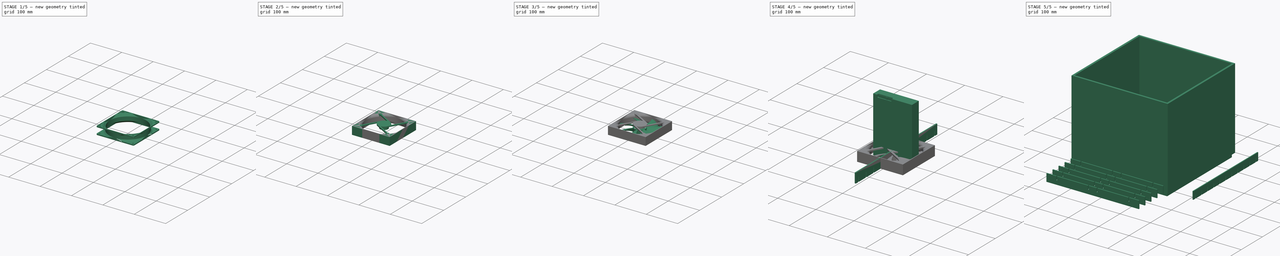
[diagram: build sequence overview — one tinted view per stage of 5, left to right]
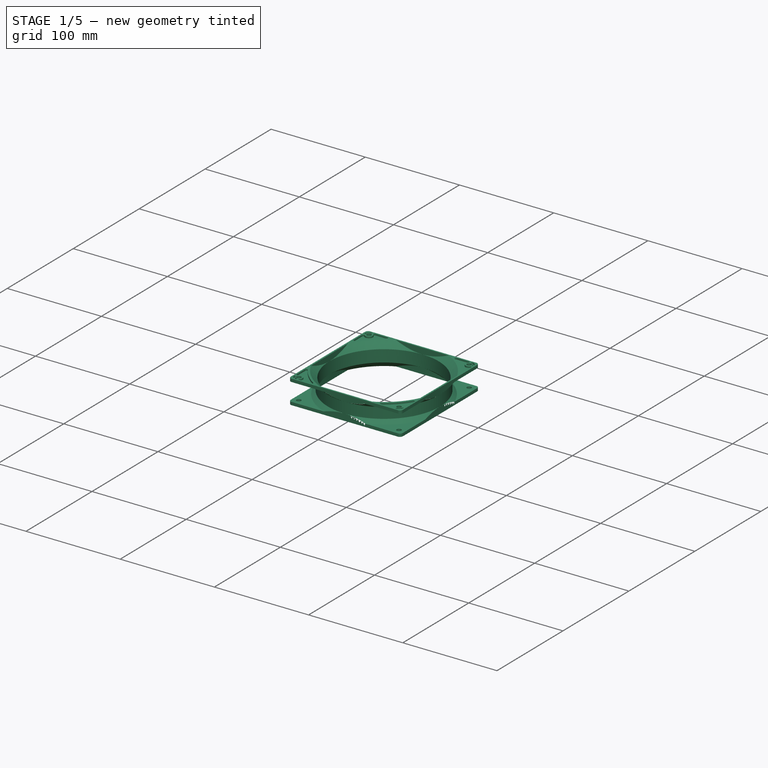
[diagram: stage 1 of 5 — iso view after this stage's code; geometry added in this stage tinted green]
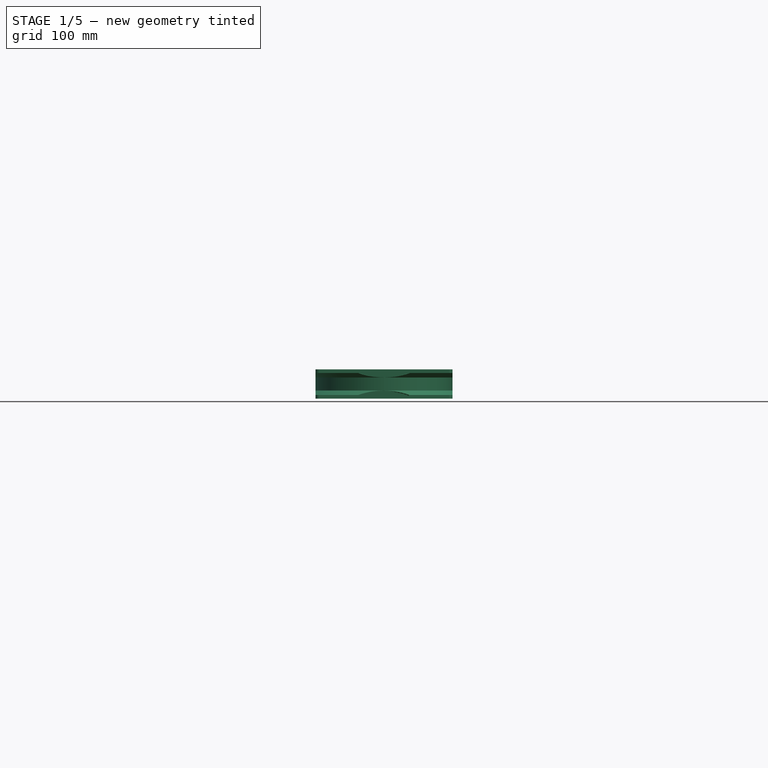
[diagram: stage 1 of 5 — front view after this stage's code; geometry added in this stage tinted green]
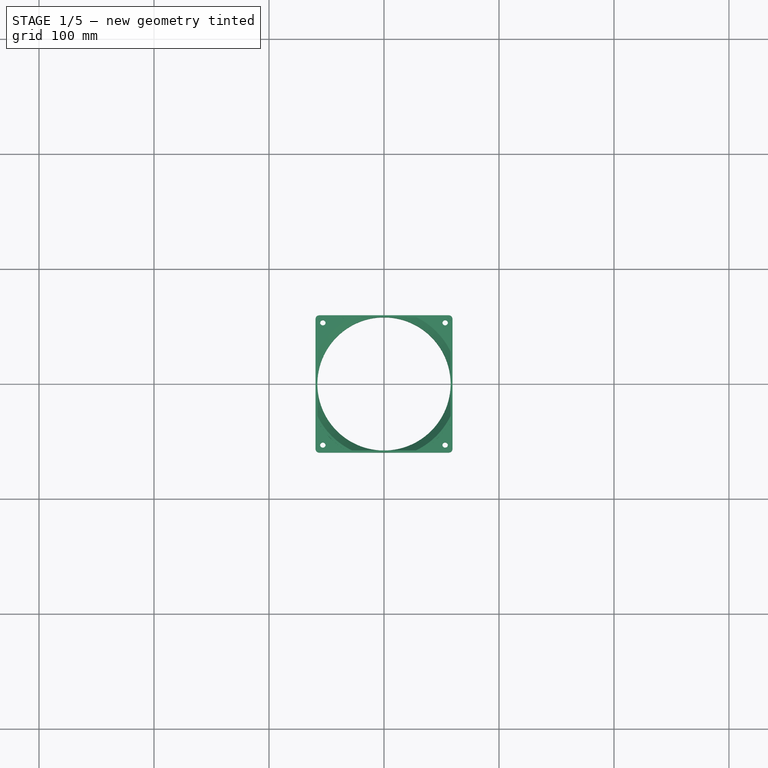
[diagram: stage 1 of 5 — top view after this stage's code; geometry added in this stage tinted green]
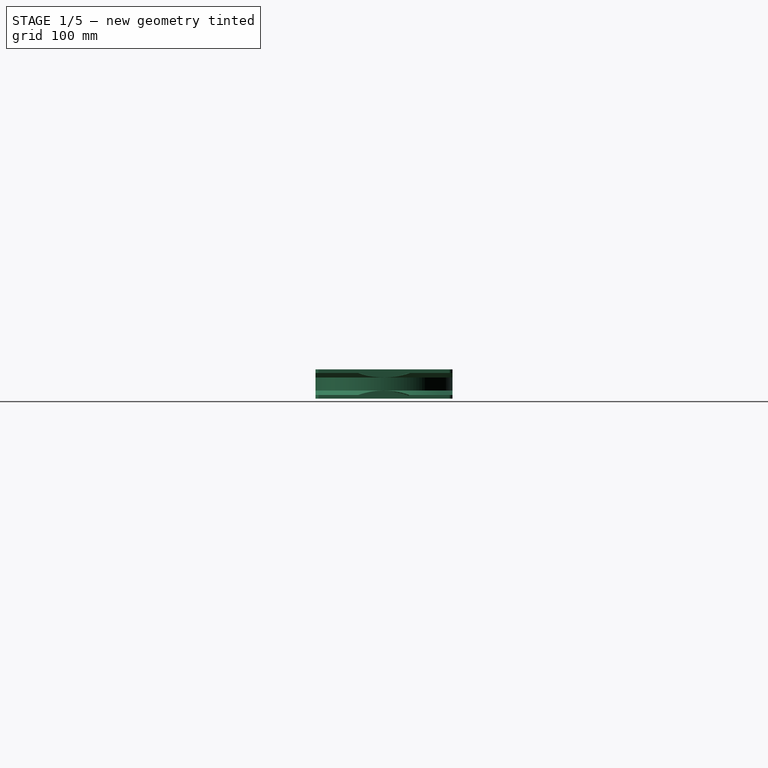
[diagram: stage 1 of 5 — right view after this stage's code; geometry added in this stage tinted green]
FCSTD DOCUMENT  (FreeCAD 0.20R27930 (Git))
Label: milk-crate-das
License: All rights reserved
LicenseURL: http://en.wikipedia.org/wiki/All_rights_reserved
objects: Sketcher::SketchObject×34, PartDesign::Pad×17, PartDesign::Pocket×11, PartDesign::Body×8, PartDesign::Plane×8, PartDesign::PolarPattern×5, Part::FeaturePython×4, PartDesign::Mirrored×4, PartDesign::MultiTransform×3, PartDesign::LinearPattern×2, Part::Part2DObjectPython×2, App::Part×2, Spreadsheet::Sheet×1, PartDesign::AdditivePipe×1, PartDesign::Fillet×1, PartDesign::Revolution×1, PartDesign::Groove×1
note: 130 computed .brp shape members not serialized (recipe doc carries the construction recipe); baked Part::Feature solids carry a one-line shape summary decoded from their .brp

FEATURE [PartDesign::Body] Body005  label="fanHousingBody"
  Group = -> [Sketch015,Pad010,DatumPlane003,Sketch016,Pocket005,Fillet001,Sketch017,Sketch018,Sketch019,Pad011,Pad012,Pad013,PolarPattern,DatumPlane004,Sketch021,Pad015]
  Origin = -> Origin008
  Tip = -> Pad015
FEATURE [Sketcher::SketchObject] Sketch052  label="wallSketch"
  FullyConstrained = true
  MapMode = 5
  Placement = pos=(0,0,0) rot=(1,0,0;1.5708rad)
  Support = -> [XZ_Plane015]
  expr: Constraints[20] = 1" / 8
  expr: Constraints[21] = 1" / 16
  expr: Constraints[23] = 1" / 16
  expr: Constraints[9] = (4" + 9" / 16) / 2
  sketch-geometry (9):
    g0: LineSegment StartX=-64.2937 StartY=0 StartZ=0 EndX=-57.9437 EndY=6.35 EndZ=0
    g1: LineSegment StartX=-57.9437 StartY=6.35 StartZ=0 EndX=-57.9437 EndY=12.7 EndZ=0
    g2: LineSegment StartX=-57.9437 StartY=12.7 StartZ=0 EndX=0 EndY=12.7 EndZ=0
    g3: LineSegment StartX=-64.2937 StartY=0 StartZ=0 EndX=-115.094 EndY=0 EndZ=0
    g4: LineSegment StartX=-115.094 StartY=0 StartZ=0 EndX=-115.094 EndY=3.175 EndZ=0
    g5: LineSegment StartX=-115.094 StartY=3.175 StartZ=0 EndX=-63.3638 EndY=3.175 EndZ=0
    g6: LineSegment StartX=-63.3638 StartY=3.175 StartZ=0 EndX=-59.5312 EndY=7.00756 EndZ=0
    g7: LineSegment StartX=-59.5312 StartY=7.00756 StartZ=0 EndX=-59.5312 EndY=12.7 EndZ=0
    g8: LineSegment StartX=-59.5312 StartY=12.7 StartZ=0 EndX=-57.9437 EndY=12.7 EndZ=0
  constraints (27):
    c: PointOnObject(g0,g-1)
    c: Coincident(g0,g1)
    c: Vertical(g1)
    c: Angle(g-1,g0) = 0.785398
    c: DistanceY(g-1,g0) = 6.35
    c: DistanceY(g1,g1) = 6.35
    c: Coincident(g2,g1)
    c: PointOnObject(g2,g-2)
    c: Horizontal(g2)
    c: DistanceX(g2,g2) = 57.9437
    c: Coincident(g0,g3)
    c: Horizontal(g3)
    c: Coincident(g3,g4)
    c: Vertical(g4)
    c: Coincident(g4,g5)
    c: Horizontal(g5)
    c: Coincident(g5,g6)
    c: Coincident(g6,g7)
    c: Vertical(g7)
    c: Horizontal(g7,g1)
    c: DistanceY(g4,g4) = 3.175
    c: DistanceX(g7,g1) = 1.5875
    c: Parallel(g6,g0)
    c: Distance(g5,g0) = 1.5875
    c: Distance(g3) = 50.8
    c: Coincident(g8,g7)
    c: Coincident(g8,g1)
FEATURE [Sketcher::SketchObject] Sketch053  label="outlineSketch"
  FullyConstrained = true
  MapMode = 5
  Support = -> [XY_Plane015]
  expr: Constraints[35] = 4" + 11" / 16
  expr: Constraints[36] = 4" + 11" / 16
  sketch-geometry (16):
    g0: LineSegment StartX=-56.3563 StartY=59.5312 StartZ=0 EndX=56.3563 EndY=59.5312 EndZ=0
    g1: LineSegment StartX=59.5312 StartY=56.3563 StartZ=0 EndX=59.5312 EndY=-56.3563 EndZ=0
    g2: LineSegment StartX=56.3563 StartY=-59.5313 StartZ=0 EndX=-56.3563 EndY=-59.5313 EndZ=0
    g3: LineSegment StartX=-59.5312 StartY=-56.3563 StartZ=0 EndX=-59.5312 EndY=56.3563 EndZ=0
    g4: LineSegment StartX=-127 StartY=127 StartZ=0 EndX=127 EndY=127 EndZ=0
    g5: LineSegment StartX=127 StartY=127 StartZ=0 EndX=127 EndY=-127 EndZ=0
    g6: LineSegment StartX=127 StartY=-127 StartZ=0 EndX=-127 EndY=-127 EndZ=0
    g7: LineSegment StartX=-127 StartY=-127 StartZ=0 EndX=-127 EndY=127 EndZ=0
    g8: ArcOfCircle CenterX=-56.3562 CenterY=56.3562 CenterZ=0 NormalX=0 NormalY=0 NormalZ=1 AngleXU=0 Radius=3.175 StartAngle=1.5708 EndAngle=3.14159
    g9: GeomPoint X=-59.5312 Y=59.5312 Z=0
    g10: ArcOfCircle CenterX=56.3562 CenterY=56.3562 CenterZ=0 NormalX=0 NormalY=0 NormalZ=1 AngleXU=0 Radius=3.175 StartAngle=5.867e-13 EndAngle=1.5708
    g11: GeomPoint X=59.5312 Y=59.5312 Z=0
    g12: ArcOfCircle CenterX=56.3562 CenterY=-56.3562 CenterZ=0 NormalX=0 NormalY=0 NormalZ=1 AngleXU=0 Radius=3.175 StartAngle=4.71239 EndAngle=6.28319
    g13: GeomPoint X=59.5312 Y=-59.5312 Z=0
    g14: ArcOfCircle CenterX=-56.3562 CenterY=-56.3562 CenterZ=0 NormalX=0 NormalY=0 NormalZ=1 AngleXU=0 Radius=3.175 StartAngle=3.14159 EndAngle=4.71239
    g15: GeomPoint X=-59.5312 Y=-59.5312 Z=0
  constraints (37):
    c: Horizontal(g0)
    c: Horizontal(g2)
    c: Vertical(g1)
    c: Vertical(g3)
    c: Symmetric(g9,g13,g-1)
    c: Coincident(g4,g5)
    c: Coincident(g5,g6)
    c: Coincident(g6,g7)
    c: Coincident(g7,g4)
    c: Horizontal(g4)
    c: Horizontal(g6)
    c: Vertical(g5)
    c: Vertical(g7)
    c: Symmetric(g5,g4,g-1)
    c: DistanceY(g5,g5) = 254
    c: Equal(g5,g4)
    c: PointOnObject(g9,g3)
    c: PointOnObject(g9,g0)
    c: Tangent(g3,g8) = 1.5708
    c: Tangent(g0,g8) = 1.5708
    c: PointOnObject(g11,g0)
    c: PointOnObject(g11,g1)
    c: Tangent(g0,g10) = 1.5708
    c: Tangent(g1,g10) = 1.5708
    c: PointOnObject(g13,g1)
    c: PointOnObject(g13,g2)
    c: Tangent(g1,g12) = 1.5708
    c: Tangent(g2,g12) = 1.5708
    c: Tangent(g2,g14) = 1.5708
    c: Tangent(g3,g14) = 1.5708
    c: Equal(g10,g8)
    c: Equal(g14,g8)
    c: Equal(g12,g8)
    c: Symmetric(g15,g11,g-1)
    c: Diameter(g12) = 6.35
    c: DistanceX(g3,g1) = 119.062
    c: DistanceY(g2,g0) = 119.062
FEATURE [PartDesign::Revolution] Revolution  label="wallRevolution"
  Angle = 360
  Axis = (0,-2e-16,1)
  Base = (0,0,0)
  Placement = pos=(0,0,0) rot=(1,0,0;1.5708rad)
  Profile = -> Sketch052
  ReferenceAxis = -> Sketch052 [V_Axis]
FEATURE [Sketcher::SketchObject] Sketch059  label="sideDecorSketch"
  AttachmentOffset = pos=(0,0,59.5312) rot=(0,0,1;0rad)
  ExternalGeometry = -> [Sketch052]
  FullyConstrained = true
  MapMode = 5
  Placement = pos=(0,-59.5312,-1.32e-14) rot=(1,0,0;1.5708rad)
  Support = -> [XZ_Plane015]
  expr: .AttachmentOffset.Base.z = (4" + 11" / 16) / 2
  sketch-geometry (6):
    g0: ArcOfCircle CenterX=-7.8e-15 CenterY=-59.35 CenterZ=0 NormalX=0 NormalY=0 NormalZ=1 AngleXU=0 Radius=66.3576 StartAngle=1.10708 EndAngle=2.03451
    g1: LineSegment StartX=-29.68 StartY=-1.08216e-11 StartZ=0 EndX=29.68 EndY=-1.08358e-11 EndZ=0
    g2: LineSegment StartX=-59.5312 StartY=7.00756 StartZ=0 EndX=0 EndY=7.00756 EndZ=0
    g3: LineSegment StartX=-63.3638 StartY=3.175 StartZ=0 EndX=0 EndY=3.175 EndZ=0
    g4: GeomPoint X=-22.225 Y=3.175 Z=0
    g5: LineSegment StartX=-25.4 StartY=0 StartZ=0 EndX=0 EndY=25.4 EndZ=0
  constraints (18):
    c: Symmetric(g0,g0,g-2)
    c: Coincident(g1,g0)
    c: Coincident(g1,g0)
    c: Coincident(g2,g-3)
    c: PointOnObject(g2,g-2)
    c: Horizontal(g2)
    c: PointOnObject(g2,g0)
    c: PointOnObject(g0,g-1)
    c: Coincident(g3,g-4)
    c: PointOnObject(g3,g-2)
    c: Horizontal(g3)
    c: PointOnObject(g4,g0)
    c: PointOnObject(g5,g-2)
    c: Angle(g-1,g5) = 0.785398
    c: PointOnObject(g5,g-1)
    c: PointOnObject(g4,g3)
    c: PointOnObject(g4,g5)
    c: DistanceY(g-1,g5) = 25.4
FEATURE [PartDesign::Plane] DatumPlane008  label="halfHeightDatumPlane"
  AttachmentOffset = pos=(0,0,12.7) rot=(0,0,1;0rad)
  Length = 151.687
  MapMode = 5
  Placement = pos=(0,0,12.7) rot=(0,0,1;0rad)
  ResizeMode = 0
  Support = -> [XY_Plane015]
  Width = 147.854
FEATURE [PartDesign::Mirrored] Mirrored003  label="wallMirrored"
  BaseFeature = -> Revolution
  MirrorPlane = -> DatumPlane008
  Originals = -> [Revolution]
  Overlap = 0
  Placement = pos=(0,0,0) rot=(1,0,0;1.5708rad)
FEATURE [PartDesign::Pocket] Pocket009  label="outlinePocket"
  BaseFeature = -> Mirrored003
  Direction = (0,0,-1)
  Length = 5.08
  Length2 = 5.08
  Placement = pos=(0,0,0) rot=(1,0,0;1.5708rad)
  Profile = -> Sketch053
  ReferenceAxis = -> Sketch053 [N_Axis]
  Reversed = true
  Type = 1
FEATURE [PartDesign::PolarPattern] PolarPattern001  label="sideDecorPolarPattern"
  Angle = 360
  Axis = -> Z_Axis015
  Occurrences = 4
  Overlap = 0
  Placement = pos=(0,0,0) rot=(1,0,0;1.5708rad)
FEATURE [PartDesign::Mirrored] Mirrored004  label="sideDecorMirrored"
  MirrorPlane = -> DatumPlane008
  Overlap = 0
  Placement = pos=(0,0,0) rot=(1,0,0;1.5708rad)
FEATURE [Sketcher::SketchObject] Sketch060  label="mountHoleSketch"
  ExternalGeometry = -> [Sketch053]
  FullyConstrained = true
  MapMode = 5
  Support = -> [XY_Plane015]
  expr: Constraints[0] = 3" / 16
  sketch-geometry (1):
    g0: Circle CenterX=-53.1812 CenterY=53.1812 CenterZ=0 NormalX=0 NormalY=0 NormalZ=1 AngleXU=0 Radius=2.38125
  constraints (3):
    c: Diameter(g0) = 4.7625
    c: DistanceY(g0,g-4) = 6.35
    c: DistanceX(g-3,g0) = 6.35
FEATURE [PartDesign::Pocket] Pocket010  label="mountHolePocket"
  BaseFeature = -> Pocket009
  Direction = (0,0,-1)
  Length = 5.08
  Length2 = 5.08
  Placement = pos=(0,0,0) rot=(1,0,0;1.5708rad)
  Profile = -> Sketch060
  ReferenceAxis = -> Sketch060 [N_Axis]
  Reversed = true
  Type = 1
FEATURE [Sketcher::SketchObject] Sketch061  label="mountDecorSketch"
  ExternalGeometry = -> [Sketch053,Pocket010]
  FullyConstrained = true
  MapMode = 5
  Support = -> [XY_Plane015]
  expr: Constraints[14] = 8" / 16
  expr: Constraints[16] = 1" / 16
  expr: Constraints[18] = 5" / 16
  expr: Constraints[24] = 1" / 16
  expr: Constraints[7] = 1" / 16
  expr: Constraints[8] = 1.5" / 16
  sketch-geometry (13):
    g0: LineSegment StartX=-57.9437 StartY=36.7582 StartZ=0 EndX=-57.9437 EndY=49.4582 EndZ=0
    g1: ArcOfCircle CenterX=-56.7531 CenterY=49.4582 CenterZ=0 NormalX=0 NormalY=0 NormalZ=1 AngleXU=0 Radius=1.19062 StartAngle=0.806114 EndAngle=3.14159
    g2: ArcOfCircle CenterX=-53.1812 CenterY=53.1812 CenterZ=0 NormalX=0 NormalY=0 NormalZ=1 AngleXU=0 Radius=3.96875 StartAngle=3.94771 EndAngle=7.04787
    g3: ArcOfCircle CenterX=-49.4582 CenterY=56.7531 CenterZ=0 NormalX=0 NormalY=0 NormalZ=1 AngleXU=0 Radius=1.19062 StartAngle=1.5708 EndAngle=3.90627
    g4: LineSegment StartX=-49.4582 StartY=57.9437 StartZ=0 EndX=-36.7582 EndY=57.9437 EndZ=0
    g5: ArcOfCircle CenterX=-36.7582 CenterY=56.7531 CenterZ=0 NormalX=0 NormalY=0 NormalZ=1 AngleXU=0 Radius=1.19062 StartAngle=5.28714 EndAngle=7.85398
    g6: ArcOfCircle CenterX=0 CenterY=0 CenterZ=0 NormalX=0 NormalY=0 NormalZ=1 AngleXU=0 Radius=66.4266 StartAngle=2.14554 EndAngle=2.56685
    g7: ArcOfCircle CenterX=-56.7531 CenterY=36.7582 CenterZ=0 NormalX=0 NormalY=0 NormalZ=1 AngleXU=0 Radius=1.19062 StartAngle=3.14159 EndAngle=5.70844
    g8: ArcOfCircle CenterX=-53.1812 CenterY=53.1812 CenterZ=0 NormalX=0 NormalY=0 NormalZ=1 AngleXU=0 Radius=4.77028 StartAngle=1.62793 EndAngle=3.08446
    g9: ArcOfCircle CenterX=-53.4083 CenterY=57.1513 CenterZ=0 NormalX=0 NormalY=0 NormalZ=1 AngleXU=0 Radius=0.79375 StartAngle=4.76952 EndAngle=7.91111
    g10: ArcOfCircle CenterX=-53.1812 CenterY=53.1812 CenterZ=0 NormalX=0 NormalY=0 NormalZ=1 AngleXU=0 Radius=3.18278 StartAngle=1.62793 EndAngle=3.08446
    g11: ArcOfCircle CenterX=-57.1513 CenterY=53.4083 CenterZ=0 NormalX=0 NormalY=0 NormalZ=1 AngleXU=0 Radius=0.79375 StartAngle=3.08446 EndAngle=6.22606
    g12: LineSegment StartX=0 StartY=0 StartZ=0 EndX=-58.6013 EndY=58.6013 EndZ=0
  constraints (32):
    c: Tangent(g0,g1) = 1.5708
    c: Tangent(g1,g2) = 1.5708
    c: Horizontal(g4)
    c: Tangent(g4,g5) = 1.5708
    c: Tangent(g5,g6) = 1.5708
    c: Tangent(g6,g7) = 1.5708
    c: Vertical(g0)
    c: DistanceX(g-3,g0) = 1.5875
    c: Diameter(g1) = 2.38125
    c: Equal(g1,g3)
    c: Equal(g3,g5)
    c: Equal(g5,g7)
    c: Tangent(g3,g4) = 1.5708
    c: Tangent(g7,g0) = 1.5708
    c: Distance(g0) = 12.7
    c: Coincident(g6,g-1)
    c: DistanceY(g3,g-5) = 1.5875
    c: Tangent(g2,g3) = 1.5708
    c: Diameter(g2) = 7.9375
    c: Tangent(g8,g9) = -1.5708
    c: Tangent(g10,g11) = 1.5708
    c: Tangent(g9,g10) = 1.5708
    c: Vertical(g8,g0)
    c: Tangent(g8,g11) = -1.5708
    c: Diameter(g9) = 1.5875
    c: Distance(g8,g8) = 6.35
    c: Coincident(g12,g6)
    c: PointOnObject(g12,g-4)
    c: Coincident(g2,g-6)
    c: Coincident(g8,g2)
    c: Coincident(g10,g2)
    c: Symmetric(g11,g9,g12)
FEATURE [PartDesign::Pocket] Pocket011  label="mountDecorPocket"
  BaseFeature = -> Pocket010
  Direction = (0,0,-1)
  Length = 1.5875
  Length2 = 5.08
  Placement = pos=(0,0,0) rot=(1,0,0;1.5708rad)
  Profile = -> Sketch061
  ReferenceAxis = -> Sketch061 [N_Axis]
  Reversed = true
  Type = 0
  expr: Length = 1" / 16
FEATURE [PartDesign::Pad] Pad019  label="sideDecorPad"
  BaseFeature = -> Pocket011
  Direction = (0,-1,-2e-16)
  Length = 1.5875
  Length2 = 9.906
  Placement = pos=(0,0,0) rot=(1,0,0;1.5708rad)
  Profile = -> Sketch059
  ReferenceAxis = -> Sketch059 [N_Axis]
  Refine = true
  Reversed = true
  Type = 0
  expr: Length = 1" / 16
FEATURE [PartDesign::MultiTransform] MultiTransform  label="sideDecorMultiTransform"
  BaseFeature = -> Pad019
  Originals = -> [Pad019]
  Overlap = 0
  Placement = pos=(0,0,0) rot=(1,0,0;1.5708rad)
  Transformations = -> [PolarPattern001,Mirrored004]
FEATURE [PartDesign::PolarPattern] PolarPattern002  label="mountDecorPolarPattern"
  Angle = 360
  Axis = -> Z_Axis015
  Occurrences = 4
  Overlap = 0
  Placement = pos=(0,0,0) rot=(1,0,0;1.5708rad)
FEATURE [PartDesign::Mirrored] Mirrored005  label="mountDecorMirrored"
  MirrorPlane = -> DatumPlane008
  Overlap = 0
  Placement = pos=(0,0,0) rot=(1,0,0;1.5708rad)
FEATURE [PartDesign::MultiTransform] MultiTransform001  label="mountDecorMultiTransform"
  BaseFeature = -> MultiTransform
  Originals = -> [Pocket011]
  Overlap = 0
  Placement = pos=(0,0,0) rot=(1,0,0;1.5708rad)
  Transformations = -> [PolarPattern002,Mirrored005]
FEATURE [PartDesign::PolarPattern] PolarPattern003  label="mountHolePolarPattern"
  Angle = 360
  Axis = -> Z_Axis015
  BaseFeature = -> MultiTransform001
  Occurrences = 4
  Originals = -> [Pocket010]
  Overlap = 0
  Placement = pos=(0,0,0) rot=(1,0,0;1.5708rad)
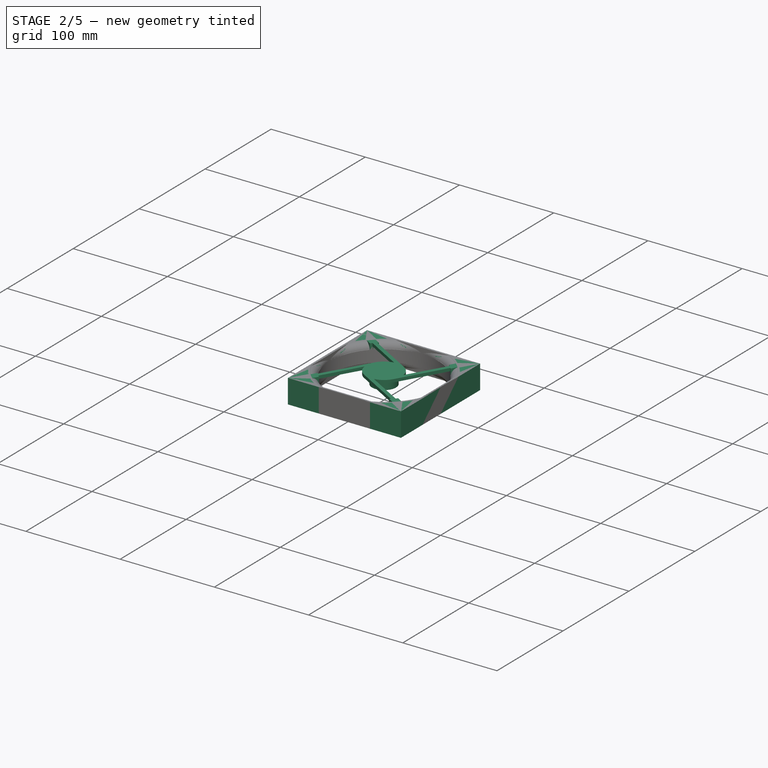
[diagram: stage 2 of 5 — iso view after this stage's code; geometry added in this stage tinted green]
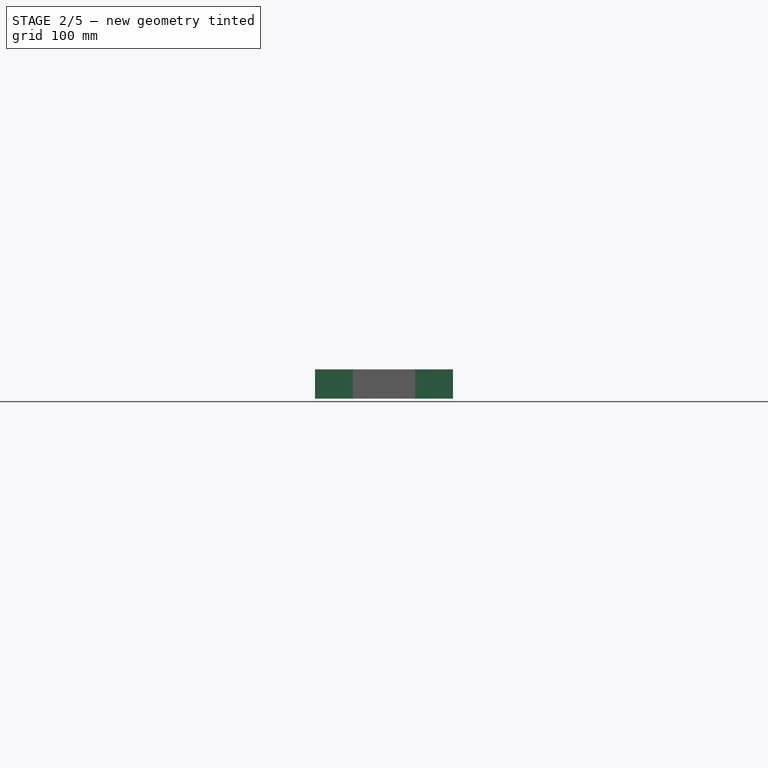
[diagram: stage 2 of 5 — front view after this stage's code; geometry added in this stage tinted green]
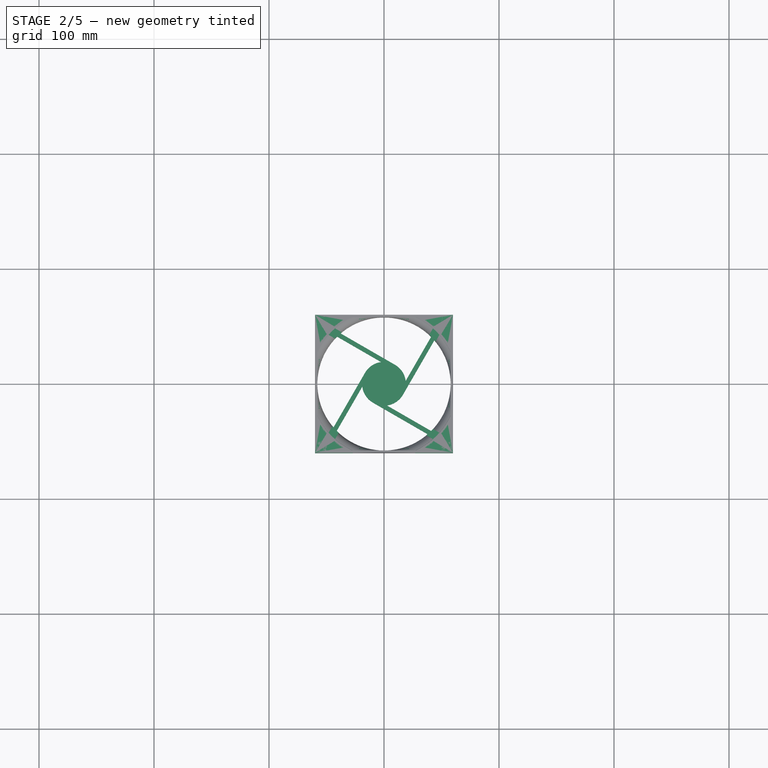
[diagram: stage 2 of 5 — top view after this stage's code; geometry added in this stage tinted green]
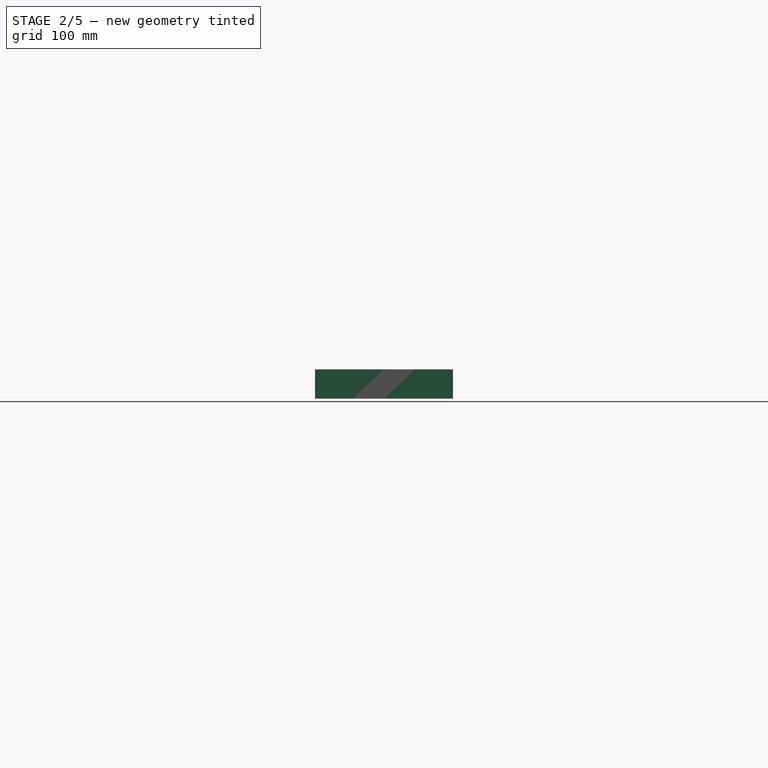
[diagram: stage 2 of 5 — right view after this stage's code; geometry added in this stage tinted green]
FEATURE [PartDesign::Body] Body003  label="hddBody"
  Group = -> [Sketch007,Pad004,Sketch008,Pocket003,DatumPlane,Mirrored,DatumPlane001,Sketch009,Pad005]
  Origin = -> Origin006
  Tip = -> Pad005
FEATURE [Sketcher::SketchObject] Sketch015  label="fanPadSketch"
  FullyConstrained = true
  MapMode = 5
  Support = -> [XY_Plane008]
  expr: Constraints[10] = Spreadsheet.fanWidth
  expr: Constraints[9] = Spreadsheet.fanLength
  sketch-geometry (4):
    g0: LineSegment StartX=-60 StartY=60 StartZ=0 EndX=60 EndY=60 EndZ=0
    g1: LineSegment StartX=60 StartY=60 StartZ=0 EndX=60 EndY=-60 EndZ=0
    g2: LineSegment StartX=60 StartY=-60 StartZ=0 EndX=-60 EndY=-60 EndZ=0
    g3: LineSegment StartX=-60 StartY=-60 StartZ=0 EndX=-60 EndY=60 EndZ=0
  constraints (11):
    c: Coincident(g0,g1)
    c: Coincident(g1,g2)
    c: Coincident(g2,g3)
    c: Coincident(g3,g0)
    c: Horizontal(g0)
    c: Horizontal(g2)
    c: Vertical(g1)
    c: Vertical(g3)
    c: Symmetric(g2,g0,g-1)
    c: DistanceY(g3,g3) = 120
    c: DistanceX(g0,g0) = 120
FEATURE [PartDesign::Pad] Pad010  label="fanPad"
  Direction = (0,0,1)
  Length = 25.4
  Length2 = 9.906
  Profile = -> Sketch015
  ReferenceAxis = -> Sketch015 [N_Axis]
  Type = 0
  expr: Length = Spreadsheet.fanHeight
FEATURE [PartDesign::Plane] DatumPlane003  label="fanFaceDatumPlane"
  AttachmentOffset = pos=(0,0,25.4) rot=(0,0,1;0rad)
  Length = 144
  MapMode = 2
  Placement = pos=(0,0,25.4) rot=(0,0,1;0rad)
  ResizeMode = 0
  Support = -> [XY_Plane008]
  Width = 144
  expr: .AttachmentOffset.Base.z = Spreadsheet.fanHeight
FEATURE [Sketcher::SketchObject] Sketch016  label="fanHoleSketch"
  FullyConstrained = true
  MapMode = 5
  Placement = pos=(0,0,25.4) rot=(0,0,1;0rad)
  Support = -> [DatumPlane003]
  expr: Constraints[1] = 4in + 9in / 16
  sketch-geometry (1):
    g0: Circle CenterX=0 CenterY=0 CenterZ=0 NormalX=0 NormalY=0 NormalZ=1 AngleXU=0 Radius=57.9437
  constraints (2):
    c: Coincident(g0,g-1)
    c: Diameter(g0) = 115.887
FEATURE [PartDesign::Pocket] Pocket005  label="fanHolePocket"
  BaseFeature = -> Pad010
  Direction = (0,0,-1)
  Length = 25.4
  Length2 = 5.08
  Profile = -> Sketch016
  ReferenceAxis = -> Sketch016 [N_Axis]
  Type = 0
  expr: Length = Spreadsheet.fanHeight
FEATURE [PartDesign::Body] Body008  label="fanHubBody"
  Group = -> [Clone2D001,Sketch051,Pad017]
  Origin = -> Origin011
  Tip = -> Pad017
FEATURE [App::Part] Part  label="blades"
  Group = -> [Sketch044,Body006,Array005,Body008]
  Origin = -> Origin012
  Placement = pos=(-2e-15,0,19) rot=(0,1,0;3.14159rad)
FEATURE [PartDesign::Fillet] Fillet001  label="fanHoleFillet"
  Base = -> Pocket005 [Edge14,Edge12]
  BaseFeature = -> Pocket005
  Radius = 7.9375
  SupportTransform = false
  UseAllEdges = false
  expr: Radius = 5in / 16
FEATURE [PartDesign::Plane] DatumPlane009  label="fullHeightDatumPlane"
  AttachmentOffset = pos=(0,0,25.4) rot=(0,0,1;0rad)
  Length = 151.687
  MapMode = 5
  Placement = pos=(0,0,25.4) rot=(0,0,1;0rad)
  ResizeMode = 0
  Support = -> [XY_Plane015]
  Width = 147.854
FEATURE [Sketcher::SketchObject] Sketch062  label="grillHubSketch"
  FullyConstrained = true
  MapMode = 5
  Placement = pos=(0,0,25.4) rot=(0,0,1;0rad)
  Support = -> [DatumPlane009]
  sketch-geometry (1):
    g0: Circle CenterX=0 CenterY=0 CenterZ=0 NormalX=0 NormalY=0 NormalZ=1 AngleXU=0 Radius=19.05
  constraints (2):
    c: Coincident(g0,g-1)
    c: Diameter(g0) = 38.1
FEATURE [Sketcher::SketchObject] Sketch063  label="grillArmSketch"
  ExternalGeometry = -> [Sketch062,Sketch052]
  FullyConstrained = true
  MapMode = 5
  Placement = pos=(0,0,25.4) rot=(0,0,1;0rad)
  Support = -> [DatumPlane009]
  expr: Constraints[7] = 2.5" / 16
  sketch-geometry (5):
    g0: LineSegment StartX=-37.8663 StartY=43.8591 StartZ=0 EndX=9.525 EndY=16.4978 EndZ=0
    g1: LineSegment StartX=-40.9106 StartY=41.0341 StartZ=0 EndX=-2.53875 EndY=18.8801 EndZ=0
    g2: ArcOfCircle CenterX=0 CenterY=0 CenterZ=0 NormalX=0 NormalY=0 NormalZ=1 AngleXU=0 Radius=19.05 StartAngle=1.0472 EndAngle=1.70446
    g3: ArcOfCircle CenterX=0 CenterY=0 CenterZ=0 NormalX=0 NormalY=0 NormalZ=1 AngleXU=0 Radius=57.9437 StartAngle=2.283 EndAngle=2.35469
    g4: Circle CenterX=0 CenterY=0 CenterZ=0 NormalX=0 NormalY=0 NormalZ=1 AngleXU=0 Radius=57.9437
  constraints (13):
    c: Parallel(g0,g1)
    c: Coincident(g2,g-3)
    c: Coincident(g2,g1)
    c: Coincident(g2,g0)
    c: Coincident(g3,g2)
    c: Coincident(g3,g1)
    c: Coincident(g3,g0)
    c: Distance(g1,g0) = 3.96875
    c: Tangent(g0,g-3) = 1.5708
    c: Angle(g0,g-1) = 0.523599
    c: Coincident(g4,g2)
    c: PointOnObject(g-4,g4)
    c: PointOnObject(g0,g4)
FEATURE [Sketcher::SketchObject] Sketch064  label="grillTabSketch"
  ExternalGeometry = -> [Sketch063,Sketch052]
  FullyConstrained = true
  MapMode = 5
  Placement = pos=(0,0,25.4) rot=(0,0,1;0rad)
  Support = -> [DatumPlane009]
  expr: Constraints[5] = 5" / 16
  expr: Constraints[8] = 1.5" / 16
  sketch-geometry (6):
    g0: LineSegment StartX=-42.5736 StartY=48.1785 StartZ=0 EndX=-36.7374 EndY=44.809 EndZ=0
    g1: LineSegment StartX=-48.1858 StartY=42.5654 StartZ=0 EndX=-42.5621 EndY=39.3185 EndZ=0
    g2: ArcOfCircle CenterX=0 CenterY=0 CenterZ=0 NormalX=0 NormalY=0 NormalZ=1 AngleXU=0 Radius=57.9437 StartAngle=2.25753 EndAngle=2.39579
    g3: ArcOfCircle CenterX=0 CenterY=0 CenterZ=0 NormalX=0 NormalY=0 NormalZ=1 AngleXU=0 Radius=64.2937 StartAngle=2.29451 EndAngle=2.41805
    g4: Circle CenterX=0 CenterY=0 CenterZ=0 NormalX=0 NormalY=0 NormalZ=1 AngleXU=0 Radius=57.9437
    g5: Circle CenterX=0 CenterY=0 CenterZ=0 NormalX=0 NormalY=0 NormalZ=1 AngleXU=0 Radius=64.2937
  constraints (16):
    c: Coincident(g2,g1)
    c: Coincident(g2,g0)
    c: Coincident(g3,g2)
    c: Coincident(g3,g1)
    c: Coincident(g3,g0)
    c: Distance(g1,g0) = 7.9375
    c: Parallel(g1,g-4)
    c: Parallel(g0,g1)
    c: Distance(g1,g-4) = 2.38125
    c: Coincident(g4,g2)
    c: PointOnObject(g-5,g4)
    c: Coincident(g5,g2)
    c: PointOnObject(g-6,g5)
    c: PointOnObject(g0,g4)
    c: PointOnObject(g0,g5)
    c: Coincident(g2,g-1)
FEATURE [PartDesign::Pad] Pad020  label="grillTabPad"
  BaseFeature = -> PolarPattern003
  Direction = (0,0,1)
  Length = 6.35
  Length2 = 9.906
  Placement = pos=(0,0,0) rot=(1,0,0;1.5708rad)
  Profile = -> Sketch064
  ReferenceAxis = -> Sketch064 [N_Axis]
  Reversed = true
  Type = 0
FEATURE [PartDesign::Pad] Pad021  label="grillArmPad"
  BaseFeature = -> Pad020
  Direction = (0,0,1)
  Length = 3.175
  Length2 = 9.906
  Placement = pos=(0,0,0) rot=(1,0,0;1.5708rad)
  Profile = -> Sketch063
  ReferenceAxis = -> Sketch063 [N_Axis]
  Reversed = true
  Type = 0
  expr: Length = 2" / 16
FEATURE [PartDesign::PolarPattern] PolarPattern004  label="grillPolarPattern"
  Angle = 360
  Axis = -> Z_Axis015
  Occurrences = 4
  Overlap = 0
  Placement = pos=(0,0,0) rot=(1,0,0;1.5708rad)
FEATURE [PartDesign::MultiTransform] MultiTransform002  label="grillMultiTransform"
  BaseFeature = -> Pad021
  Originals = -> [Pad020,Pad021]
  Overlap = 0
  Placement = pos=(0,0,0) rot=(1,0,0;1.5708rad)
  Transformations = -> [PolarPattern004]
FEATURE [PartDesign::Pad] Pad022  label="grillHubPad"
  BaseFeature = -> MultiTransform002
  Direction = (0,0,1)
  Length = 3.175
  Length2 = 9.906
  Placement = pos=(0,0,0) rot=(1,0,0;1.5708rad)
  Profile = -> Sketch062
  ReferenceAxis = -> Sketch062 [N_Axis]
  Reversed = true
  Type = 0
  expr: Length = 2" / 16
FEATURE [Sketcher::SketchObject] Sketch065  label="motorMountSketch"
  FullyConstrained = true
  MapMode = 5
  Placement = pos=(0,0,25.4) rot=(0,0,1;0rad)
  Support = -> [DatumPlane009]
  sketch-geometry (1):
    g0: Circle CenterX=0 CenterY=0 CenterZ=0 NormalX=0 NormalY=0 NormalZ=1 AngleXU=0 Radius=12.7
  constraints (2):
    c: Coincident(g0,g-1)
    c: Diameter(g0) = 25.4
FEATURE [PartDesign::Pad] Pad023  label="motorMountPad"
  BaseFeature = -> Pad022
  Direction = (0,0,1)
  Length = 12.7
  Length2 = 9.906
  Placement = pos=(0,0,0) rot=(1,0,0;1.5708rad)
  Profile = -> Sketch065
  ReferenceAxis = -> Sketch065 [N_Axis]
  Reversed = true
  Type = 0
FEATURE [Sketcher::SketchObject] Sketch066  label="tabTrimSketch"
  ExternalGeometry = -> [DatumPlane009,Sketch052,DatumPlane008]
  FullyConstrained = true
  MapMode = 5
  Placement = pos=(0,0,0) rot=(1,0,0;1.5708rad)
  Support = -> [XZ_Plane015]
  sketch-geometry (8):
    g0: LineSegment StartX=-59.5312 StartY=12.7 StartZ=0 EndX=-59.5312 EndY=7.00756 EndZ=0
    g1: LineSegment StartX=-59.5312 StartY=7.00756 StartZ=0 EndX=-63.3638 EndY=3.175 EndZ=0
    g2: LineSegment StartX=-63.3638 StartY=3.175 StartZ=0 EndX=-85.5054 EndY=3.175 EndZ=0
    g3: LineSegment StartX=-85.5054 StartY=3.175 StartZ=0 EndX=-85.5054 EndY=12.7 EndZ=0
    g4: LineSegment StartX=-59.5312 StartY=12.7 StartZ=0 EndX=-59.5312 EndY=18.3924 EndZ=0
    g5: LineSegment StartX=-59.5312 StartY=18.3924 StartZ=0 EndX=-63.3638 EndY=22.225 EndZ=0
    g6: LineSegment StartX=-63.3638 StartY=22.225 StartZ=0 EndX=-85.5054 EndY=22.225 EndZ=0
    g7: LineSegment StartX=-85.5054 StartY=22.225 StartZ=0 EndX=-85.5054 EndY=12.7 EndZ=0
  constraints (18):
    c: Coincident(g0,g-5)
    c: Coincident(g0,g-5)
    c: Coincident(g1,g0)
    c: Coincident(g1,g-6)
    c: Coincident(g2,g1)
    c: PointOnObject(g2,g-6)
    c: Coincident(g3,g2)
    c: PointOnObject(g3,g-7)
    c: Vertical(g3)
    c: Coincident(g5,g4)
    c: Coincident(g6,g5)
    c: Coincident(g7,g6)
    c: Symmetric(g4,g0,g-7)
    c: Equal(g1,g5)
    c: Equal(g6,g2)
    c: Block(g7)
    c: Block(g3)
    c: Block(g4)
FEATURE [PartDesign::Groove] Groove  label="tabTrimGroove"
  Angle = 360
  Axis = (-3e-16,3e-16,1)
  Base = (0,0,0)
  BaseFeature = -> Pad023
  Placement = pos=(0,0,0) rot=(1,0,0;1.5708rad)
  Profile = -> Sketch066
  ReferenceAxis = -> Z_Axis015
  Refine = true
  Reversed = true
FEATURE [PartDesign::Body] Body009  label="housingBody"
  Group = -> [Sketch052,Revolution,DatumPlane008,Sketch053,Mirrored003,Pocket009,Sketch059,Sketch060,Pocket010,Sketch061,Pocket011,Pad019,MultiTransform,PolarPattern001,Mirrored004,MultiTransform001,PolarPattern002,Mirrored005,PolarPattern003,Sketch062,Sketch063,Sketch064,DatumPlane009,Pad020,Pad021,MultiTransform002,PolarPattern004,Sketch066,Pad022,Sketch065,Pad023,Groove]
  Origin = -> Origin015
  Tip = -> Groove
FEATURE [App::Part] Part001  label="fan"
  Group = -> [Part,Body005,Body009]
  Origin = -> Origin014
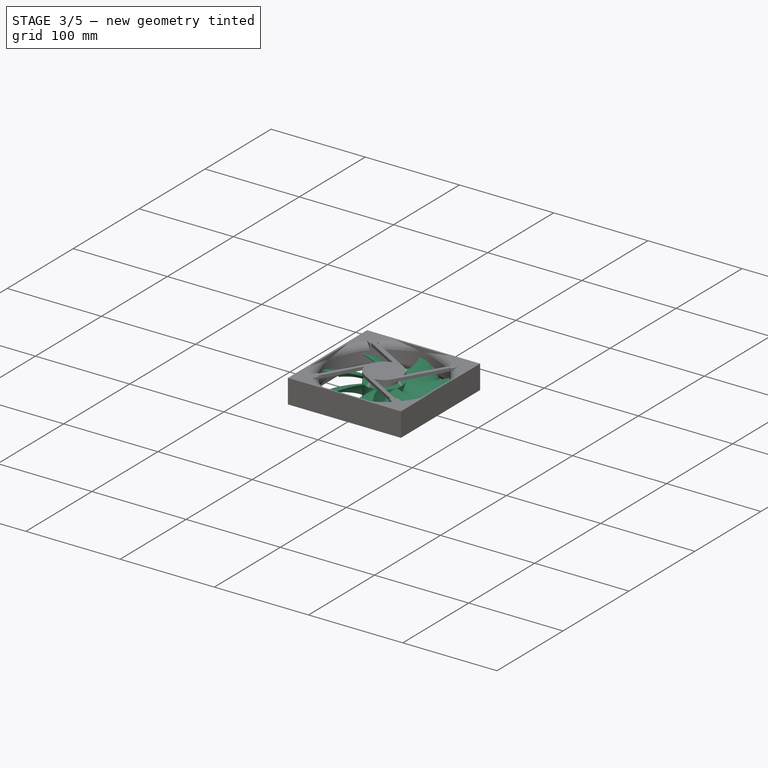
[diagram: stage 3 of 5 — iso view after this stage's code; geometry added in this stage tinted green]
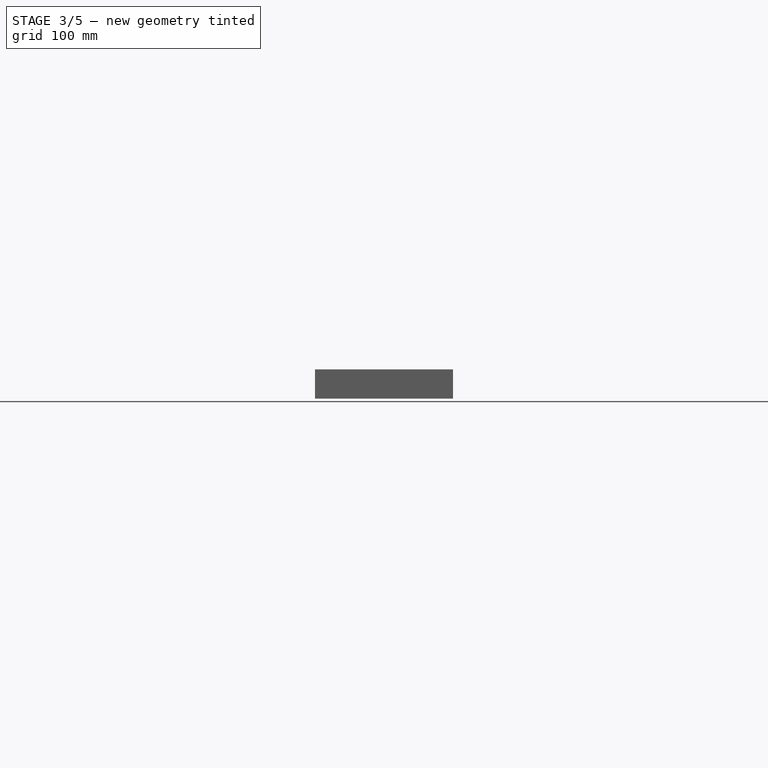
[diagram: stage 3 of 5 — front view after this stage's code; geometry added in this stage tinted green]
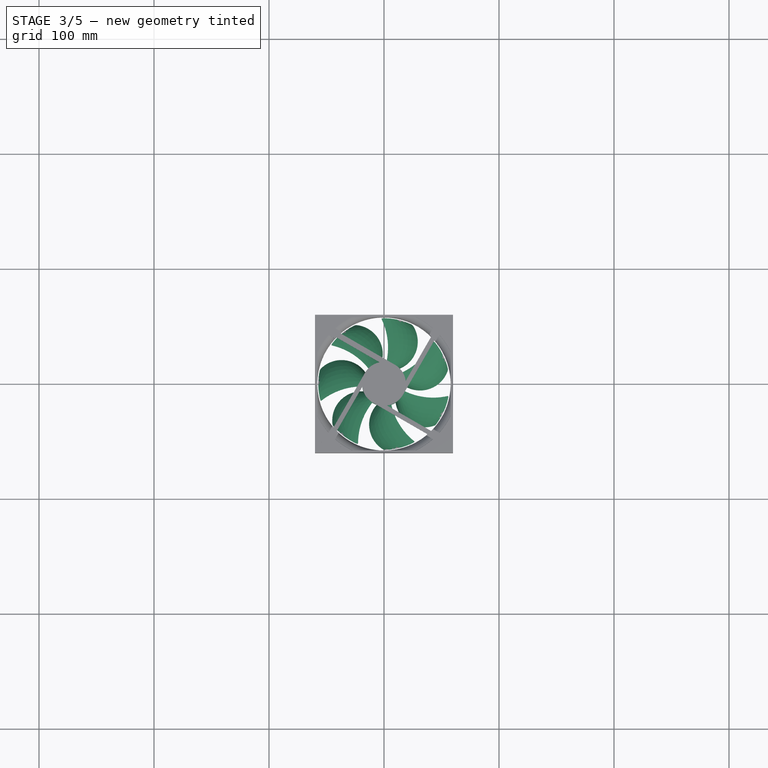
[diagram: stage 3 of 5 — top view after this stage's code; geometry added in this stage tinted green]
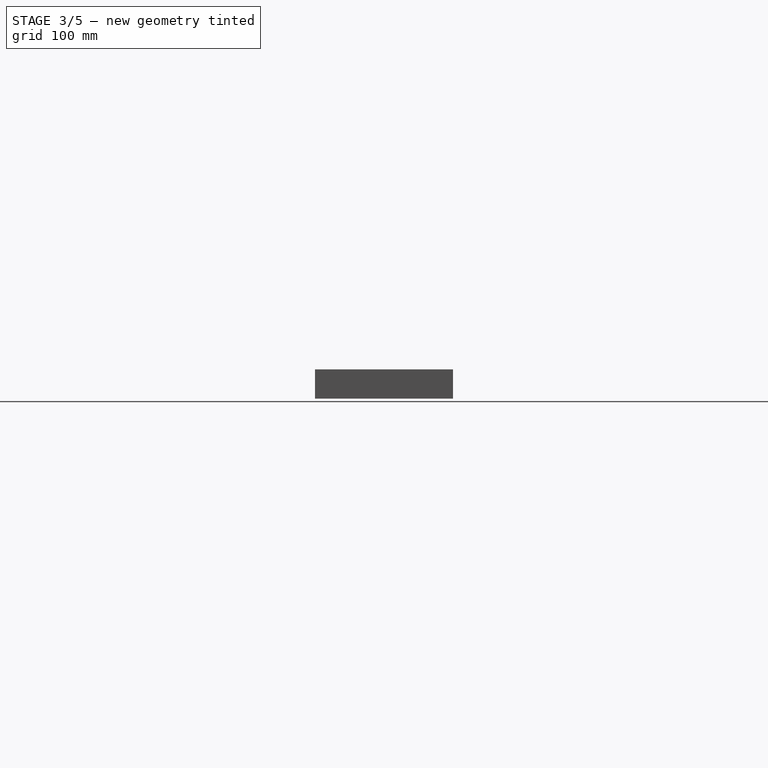
[diagram: stage 3 of 5 — right view after this stage's code; geometry added in this stage tinted green]
FEATURE [Sketcher::SketchObject] Sketch017  label="fanGrillCenterSketch"
  FullyConstrained = true
  MapMode = 5
  Placement = pos=(0,0,25.4) rot=(0,0,1;0rad)
  Support = -> [DatumPlane003]
  sketch-geometry (1):
    g0: Circle CenterX=0 CenterY=0 CenterZ=0 NormalX=0 NormalY=0 NormalZ=1 AngleXU=0 Radius=19.05
  constraints (2):
    c: Coincident(g0,g-1)
    c: Diameter(g0) = 38.1
FEATURE [Sketcher::SketchObject] Sketch018  label="fanGrillArmSketch"
  ExternalGeometry = -> [Sketch017,Sketch016]
  FullyConstrained = true
  MapMode = 5
  Placement = pos=(0,0,25.4) rot=(0,0,1;0rad)
  Support = -> [DatumPlane003]
  expr: Constraints[10] = 360 / 3
  expr: Constraints[9] = 3in / 16
  sketch-geometry (4):
    g0: LineSegment StartX=9.525 StartY=16.4978 StartZ=0 EndX=-37.8663 EndY=43.8591 EndZ=0
    g1: LineSegment StartX=-3.76851 StartY=18.6735 StartZ=0 EndX=-41.4876 EndY=40.4507 EndZ=0
    g2: ArcOfCircle CenterX=0 CenterY=0 CenterZ=0 NormalX=0 NormalY=0 NormalZ=1 AngleXU=0 Radius=19.05 StartAngle=1.0472 EndAngle=1.76993
    g3: ArcOfCircle CenterX=0 CenterY=0 CenterZ=0 NormalX=0 NormalY=0 NormalZ=1 AngleXU=0 Radius=57.9437 StartAngle=2.283 EndAngle=2.36885
  constraints (11):
    c: PointOnObject(g0,g-4)
    c: Parallel(g0,g1)
    c: Tangent(g0,g-3) = -1.5708
    c: Coincident(g2,g-4)
    c: Coincident(g2,g1)
    c: Coincident(g2,g0)
    c: Coincident(g3,g2)
    c: Coincident(g3,g1)
    c: Coincident(g3,g0)
    c: Distance(g0,g1) = 4.7625
    c: Angle(g0,g-2) = 2.0944
FEATURE [PartDesign::Plane] DatumPlane004  label="fanMotorMountDatumPlane"
  AttachmentOffset = pos=(0,0,3.175) rot=(0,0,1;0rad)
  Length = 144
  MapMode = 2
  Placement = pos=(0,0,22.225) rot=(0,1,0;3.14159rad)
  ResizeMode = 0
  Support = -> [DatumPlane003]
  Width = 144
  expr: .AttachmentOffset.Base.z = <<fanGrillCenterPad>>.Length
FEATURE [Sketcher::SketchObject] Sketch021  label="fanMotorMountSketch"
  FullyConstrained = true
  MapMode = 5
  Placement = pos=(0,0,22.225) rot=(0,1,0;3.14159rad)
  Support = -> [DatumPlane004]
  sketch-geometry (1):
    g0: Circle CenterX=0 CenterY=0 CenterZ=0 NormalX=0 NormalY=0 NormalZ=1 AngleXU=0 Radius=12.7
  constraints (2):
    c: Coincident(g0,g-1)
    c: Diameter(g0) = 25.4
FEATURE [Sketcher::SketchObject] Sketch044  label="masterFanSketch"
  FullyConstrained = true
  MapMode = 5
  Support = -> [XY_Plane012]
  expr: Constraints[15] = 1" + 1" / 16
  expr: Constraints[5] = 2"
  sketch-geometry (10):
    g0: Circle CenterX=0 CenterY=0 CenterZ=0 NormalX=0 NormalY=0 NormalZ=1 AngleXU=0 Radius=19.05
    g1: Circle CenterX=0 CenterY=0 CenterZ=0 NormalX=0 NormalY=0 NormalZ=1 AngleXU=0 Radius=57.15
    g2: ArcOfCircle CenterX=12.4679 CenterY=-35.0206 CenterZ=0 NormalX=0 NormalY=0 NormalZ=1 AngleXU=0 Radius=25.4 StartAngle=2.26112 EndAngle=4.50657
    g3: ArcOfCircle CenterX=62.0716 CenterY=-5.26305 CenterZ=0 NormalX=0 NormalY=0 NormalZ=1 AngleXU=0 Radius=57.15 StartAngle=3.30938 EndAngle=4.1127
    g4: GeomPoint X=-6.35 Y=-17.9605 Z=0
    g5: GeomPoint X=6.35 Y=-17.9605 Z=0
    g6: GeomPoint X=0 Y=-57.15 Z=0
    g7: GeomPoint X=26.9875 Y=-50.3766 Z=0
    g8: Circle CenterX=0 CenterY=0 CenterZ=0 NormalX=0 NormalY=0 NormalZ=1 AngleXU=0 Radius=15.875
    g9: Circle CenterX=0 CenterY=0 CenterZ=0 NormalX=0 NormalY=0 NormalZ=1 AngleXU=0 Radius=60.325
  constraints (26):
    c: Coincident(g0,g-1)
    c: Diameter(g0) = 38.1  'hubDiameter'
    c: Coincident(g1,g0)
    c: Diameter(g1) = 114.3
    c: Diameter(g3) = 114.3
    c: Diameter(g2) = 50.8
    c: PointOnObject(g5,g3)
    c: PointOnObject(g5,g0)
    c: Horizontal(g4,g5)
    c: DistanceX(g4,g5) = 12.7
    c: PointOnObject(g6,g2)
    c: PointOnObject(g6,g-2)
    c: PointOnObject(g6,g1)
    c: PointOnObject(g7,g3)
    c: PointOnObject(g7,g1)
    c: DistanceX(g6,g7) = 26.9875
    c: PointOnObject(g4,g0)
    c: PointOnObject(g4,g2)
    c: Coincident(g8,g0)
    c: Diameter(g8) = 31.75
    c: PointOnObject(g2,g8)
    c: PointOnObject(g3,g8)
    c: Coincident(g9,g0)
    c: Diameter(g9) = 120.65
    c: PointOnObject(g2,g9)
    c: PointOnObject(g3,g9)
FEATURE [Part::Part2DObjectPython] Clone2D  label="masterFanSketch (2D)"  # Draft 2D object (typed FeaturePython)
  Fuse = false
  Objects = -> [Sketch044]
  Scale = (1,1,1)
FEATURE [Sketcher::SketchObject] Sketch045  label="bladeLeadEdgeSketch"
  ExternalGeometry = -> [Clone2D]
  FullyConstrained = true
  MapMode = 5
  Support = -> [XY_Plane013]
  sketch-geometry (1):
    g0: Circle CenterX=62.0716 CenterY=-5.26305 CenterZ=0 NormalX=0 NormalY=0 NormalZ=1 AngleXU=0 Radius=57.15
  constraints (2):
    c: Coincident(g0,g-3)
    c: Equal(g0,g-3)
FEATURE [Sketcher::SketchObject] Sketch049  label="bladeOutsideCircleSketch"
  ExternalGeometry = -> [Clone2D]
  FullyConstrained = true
  MapMode = 5
  Support = -> [XY_Plane013]
  sketch-geometry (5):
    g0: ArcOfCircle CenterX=0 CenterY=0 CenterZ=0 NormalX=0 NormalY=0 NormalZ=1 AngleXU=0 Radius=57.15 StartAngle=4.73161 EndAngle=5.18899
    g1: Circle CenterX=0 CenterY=0 CenterZ=0 NormalX=0 NormalY=0 NormalZ=1 AngleXU=0 Radius=66.929
    g2: ArcOfCircle CenterX=25.9503 CenterY=-50.262 CenterZ=0 NormalX=0 NormalY=0 NormalZ=1 AngleXU=0 Radius=0.5842 StartAngle=5.18899 EndAngle=6.852
    g3: ArcOfCircle CenterX=1.02501 CenterY=-53.3302 CenterZ=0 NormalX=0 NormalY=0 NormalZ=1 AngleXU=0 Radius=3.81 StartAngle=4.12646 EndAngle=4.73161
    g4: ArcOfCircle CenterX=0 CenterY=0 CenterZ=0 NormalX=0 NormalY=0 NormalZ=1 AngleXU=0 Radius=56.515 StartAngle=5.19928 EndAngle=10.9764
  constraints (14):
    c: Coincident(g0,g-3)
    c: Equal(g0,g-3)
    c: Coincident(g1,g0)
    c: Diameter(g1) = 133.858
    c: Tangent(g0,g2) = -1.5708
    c: Tangent(g0,g3) = -1.5708
    c: Coincident(g4,g0)
    c: PointOnObject(g2,g-5)
    c: PointOnObject(g3,g-4)
    c: Diameter(g4) = 113.03
    c: Diameter(g3) = 7.62
    c: Diameter(g2) = 1.1684
    c: Coincident(g4,g3)
    c: Coincident(g4,g2)
FEATURE [Sketcher::SketchObject] Sketch048  label="bladeInsideCircleSketch"
  ExternalGeometry = -> [Clone2D]
  FullyConstrained = true
  MapMode = 5
  Support = -> [XY_Plane013]
  sketch-geometry (1):
    g0: Circle CenterX=0 CenterY=0 CenterZ=0 NormalX=0 NormalY=0 NormalZ=1 AngleXU=0 Radius=19.05
  constraints (2):
    c: Equal(g0,g-3)
    c: Coincident(g0,g-3)
FEATURE [PartDesign::Plane] DatumPlane005  label="bladeLeadEdgePipePlane"
  AttachmentOffset = pos=(0,0,0) rot=(0,1,0;1.5708rad)
  Length = 110.89
  MapMode = 47
  Placement = pos=(5.72416,-14.8071,0) rot=(0.360846,0.659466,0.659466;2.44898rad)
  ResizeMode = 0
  Support = -> [Clone2D]
  Width = 63.9258
FEATURE [Sketcher::SketchObject] Sketch046  label="bladeLeadEdgePipeSketch"
  ExternalGeometry = -> [Clone2D]
  FullyConstrained = true
  MapMode = 5
  Placement = pos=(5.72416,-14.8071,0) rot=(0.360846,0.659466,0.659466;2.44898rad)
  Support = -> [DatumPlane005]
  expr: Constraints[10] = 1" / 32
  expr: Constraints[11] = 5" / 8
  sketch-geometry (4):
    g0: LineSegment StartX=0 StartY=15.0812 StartZ=0 EndX=0 EndY=15.875 EndZ=0
    g1: LineSegment StartX=0 StartY=15.875 StartZ=0 EndX=-44.6853 EndY=15.875 EndZ=0
    g2: LineSegment StartX=0 StartY=15.0812 StartZ=0 EndX=-44.6853 EndY=15.0812 EndZ=0
    g3: LineSegment StartX=-44.6853 StartY=15.0812 StartZ=0 EndX=-44.6853 EndY=15.875 EndZ=0
  constraints (12):
    c: PointOnObject(g0,g-2)
    c: PointOnObject(g0,g-2)
    c: Coincident(g1,g0)
    c: Horizontal(g1)
    c: Coincident(g2,g0)
    c: Horizontal(g2)
    c: Vertical(g1,g-3)
    c: Vertical(g2,g-3)
    c: Coincident(g3,g2)
    c: Coincident(g3,g1)
    c: DistanceY(g2,g1) = 0.79375
    c: DistanceY(g-4,g0) = 15.875
FEATURE [PartDesign::Plane] DatumPlane006  label="bladePipePathPlane"
  Length = 86.9149
  MapMode = 13
  Placement = pos=(22.3036,-54.9222,10.3188) rot=(0.975091,0.156839,0.156839;1.59602rad)
  ResizeMode = 0
  Support = -> [Clone2D,Sketch046]
  Width = 62.2223
FEATURE [Sketcher::SketchObject] Sketch047  label="bladePipePathSketch"
  ExternalGeometry = -> [Clone2D,Sketch046]
  FullyConstrained = false
  MapMode = 5
  Placement = pos=(22.3036,-54.9222,10.3188) rot=(0.975091,0.156839,0.156839;1.59602rad)
  Support = -> [DatumPlane006]
  sketch-geometry (1):
    g0: ArcOfCircle CenterX=7.02831 CenterY=-18.8059 CenterZ=0 NormalX=0 NormalY=0 NormalZ=1 AngleXU=0 Radius=24.3782 StartAngle=1.53452 EndAngle=2.786
  constraints (2):
    c: Coincident(g0,g-3)
    c: Coincident(g0,g-4)
FEATURE [Sketcher::SketchObject] Sketch050  label="bladeTrailEdgePipeSketch"
  ExternalGeometry = -> [Clone2D]
  FullyConstrained = true
  MapMode = 5
  Support = -> [XY_Plane013]
  expr: Constraints[8] = 1" / 32
  sketch-geometry (4):
    g0: ArcOfCircle CenterX=12.4679 CenterY=-35.0206 CenterZ=0 NormalX=0 NormalY=0 NormalZ=1 AngleXU=0 Radius=25.4 StartAngle=2.26112 EndAngle=4.50657
    g1: ArcOfCircle CenterX=12.4679 CenterY=-35.0206 CenterZ=0 NormalX=0 NormalY=0 NormalZ=1 AngleXU=0 Radius=24.9021 StartAngle=2.23654 EndAngle=4.50657
    g2: LineSegment StartX=-3.70654 StartY=-15.4362 StartZ=0 EndX=-2.91279 EndY=-15.4362 EndZ=0
    g3: LineSegment StartX=7.27693 StartY=-59.8845 StartZ=0 EndX=7.3787 EndY=-59.3971 EndZ=0
  constraints (10):
    c: Coincident(g0,g-5)
    c: Tangent(g0,g-5) = -1.5708
    c: Coincident(g1,g0)
    c: Coincident(g2,g0)
    c: Coincident(g2,g1)
    c: Horizontal(g2)
    c: Coincident(g3,g0)
    c: Coincident(g3,g1)
    c: DistanceX(g0,g1) = 0.79375
    c: Perpendicular(g0,g3)
FEATURE [PartDesign::AdditivePipe] AdditivePipe001  label="bladePipeLoft"
  AuxilleryCurvelinear = true
  AuxillerySpineTangent = false
  Binormal = (0,0,0)
  Mode = 1
  Profile = -> Sketch050
  Sections = -> [Sketch046]
  Spine = -> Sketch047
  SpineTangent = false
  Transformation = 1
  Transition = 0
FEATURE [PartDesign::Pocket] Pocket006  label="bladeInsidePocket"
  BaseFeature = -> AdditivePipe001
  Direction = (0,0,-1)
  Length = 5.08
  Length2 = 5.08
  Profile = -> Sketch048
  ReferenceAxis = -> Sketch048 [N_Axis]
  Reversed = true
  Type = 1
FEATURE [PartDesign::Pocket] Pocket007  label="bladeOutsidePocket"
  BaseFeature = -> Pocket006
  Direction = (0,0,-1)
  Length = 5.08
  Length2 = 5.08
  Profile = -> Sketch049
  ReferenceAxis = -> Sketch049 [N_Axis]
  Reversed = true
  Type = 1
FEATURE [PartDesign::Pocket] Pocket008  label="bladeLeadEdgePocket"
  BaseFeature = -> Pocket007
  Direction = (0,0,-1)
  Length = 5.08
  Length2 = 5.08
  Profile = -> Sketch045
  ReferenceAxis = -> Sketch045 [N_Axis]
  Reversed = true
  Type = 1
FEATURE [PartDesign::Body] Body006  label="fanBladeBody"
  Group = -> [Clone2D,Sketch050,DatumPlane005,Sketch046,DatumPlane006,Sketch047,AdditivePipe001,Sketch048,Pocket006,Sketch049,Pocket007,Sketch045,Pocket008]
  Origin = -> Origin013
  Tip = -> Pocket008
FEATURE [Part::FeaturePython] Array005  label="fanBladeArray"  # Draft array (typed FeaturePython)
  AlwaysSyncPlacement = false
  Angle = 360
  ArrayType = 1
  Axis = (0,0,1)
  Base = -> Body006
  Center = (0,0,0)
  Count = 7
  ExpandArray = false
  Fuse = false
  IntervalAxis = (0,0,0)
  IntervalX = (50,0,0)
  IntervalY = (0,50,0)
  IntervalZ = (0,0,50)
  NumberCircles = 3
  NumberPolar = 7
  NumberX = 2
  NumberY = 2
  NumberZ = 1
  PlacementList = 7 placements: [(0,0,0),(0,0,0),(0,0,0),(0,0,0),(0,0,0),(0,0,0),(0,0,0)]
  RadialDistance = 50
  ScaleList = (7) [(1,1,1),(1,1,1),(1,1,1),(1,1,1),(1,1,1),(1,1,1),(1,1,1)]
  Symmetry = 1
  TangentialDistance = 25
FEATURE [Part::Part2DObjectPython] Clone2D001  label="masterFanSketch (2D)001"  # Draft 2D object (typed FeaturePython)
  Fuse = false
  Objects = -> [Sketch044]
  Scale = (1,1,1)
FEATURE [Sketcher::SketchObject] Sketch051  label="hubSketch"
  ExternalGeometry = -> [Clone2D001]
  FullyConstrained = true
  MapMode = 5
  Support = -> [XY_Plane011]
  sketch-geometry (1):
    g0: Circle CenterX=0 CenterY=0 CenterZ=0 NormalX=0 NormalY=0 NormalZ=1 AngleXU=0 Radius=19.05
  constraints (2):
    c: Coincident(g0,g-3)
    c: Equal(g0,g-3)
FEATURE [PartDesign::Pad] Pad017  label="hubPad"
  Direction = (0,0,1)
  Length = 15.875
  Length2 = 9.906
  Profile = -> Sketch051
  ReferenceAxis = -> Sketch051 [N_Axis]
  Type = 0
  expr: Length = 5" / 8
FEATURE [Sketcher::SketchObject] Sketch019  label="fanGrillArmTabSketch"
  ExternalGeometry = -> [Sketch016,Fillet001,Sketch018]
  FullyConstrained = true
  MapMode = 5
  Placement = pos=(0,0,25.4) rot=(0,0,1;0rad)
  Support = -> [DatumPlane003]
  expr: Constraints[10] = 5in / 16
  sketch-geometry (4):
    g0: ArcOfCircle CenterX=0 CenterY=0 CenterZ=0 NormalX=0 NormalY=0 NormalZ=1 AngleXU=0 Radius=57.9437 StartAngle=2.25501 EndAngle=2.39814
    g1: ArcOfCircle CenterX=0 CenterY=0 CenterZ=0 NormalX=0 NormalY=0 NormalZ=1 AngleXU=0 Radius=65.8813 StartAngle=2.30039 EndAngle=2.42499
    g2: LineSegment StartX=-49.6772 StartY=43.2725 StartZ=0 EndX=-42.6547 EndY=39.2181 EndZ=0
    g3: LineSegment StartX=-43.9144 StartY=49.1108 StartZ=0 EndX=-36.624 EndY=44.9017 EndZ=0
  constraints (12):
    c: Coincident(g0,g-4)
    c: PointOnObject(g0,g-3)
    c: Coincident(g1,g0)
    c: PointOnObject(g1,g-4)
    c: Coincident(g2,g1)
    c: Coincident(g2,g0)
    c: Coincident(g3,g1)
    c: Coincident(g3,g0)
    c: Parallel(g3,g-5)
    c: Parallel(g3,g2)
    c: Distance(g1,g2) = 7.9375
    c: Distance(g0,g-5) = 1.524
FEATURE [PartDesign::Pad] Pad011  label="fanGrillArmTabPad"
  BaseFeature = -> Fillet001
  Direction = (0,0,1)
  Length = 12.7
  Length2 = 9.906
  Profile = -> Sketch019
  ReferenceAxis = -> Sketch019 [N_Axis]
  Reversed = true
  Type = 0
  expr: Length = Spreadsheet.fanHeight / 2
FEATURE [PartDesign::Pad] Pad012  label="fanGrillArmPad"
  BaseFeature = -> Pad011
  Direction = (0,0,1)
  Length = 3.175
  Length2 = 9.906
  Profile = -> Sketch018
  ReferenceAxis = -> Sketch018 [N_Axis]
  Reversed = true
  Type = 0
  expr: Length = 2in / 16
FEATURE [PartDesign::Pad] Pad013  label="fanGrillCenterPad"
  BaseFeature = -> Pad012
  Direction = (0,0,1)
  Length = 3.175
  Length2 = 9.906
  Profile = -> Sketch017
  ReferenceAxis = -> Sketch017 [N_Axis]
  Reversed = true
  Type = 0
  expr: Length = 2in / 16
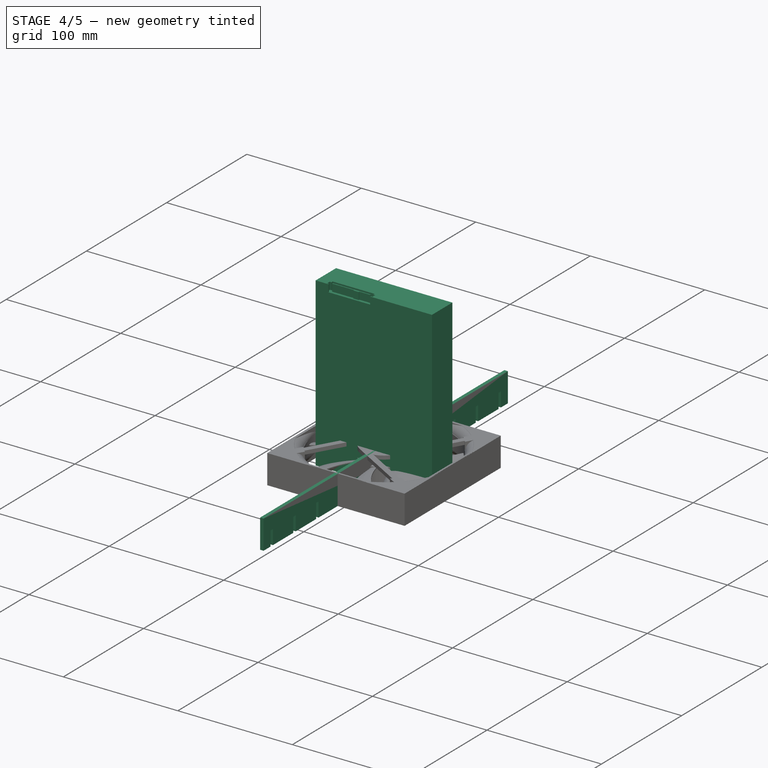
[diagram: stage 4 of 5 — iso view after this stage's code; geometry added in this stage tinted green]
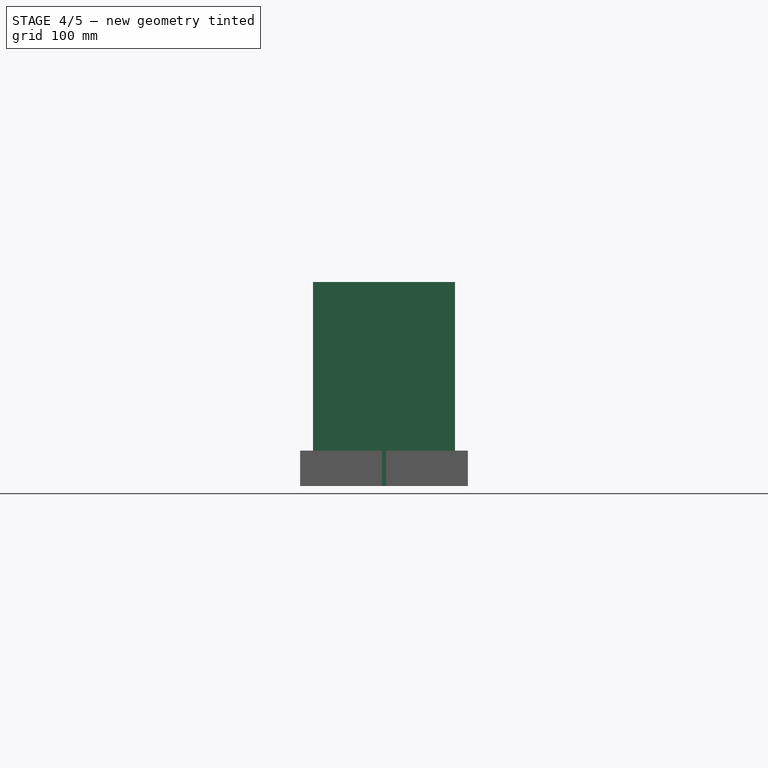
[diagram: stage 4 of 5 — front view after this stage's code; geometry added in this stage tinted green]
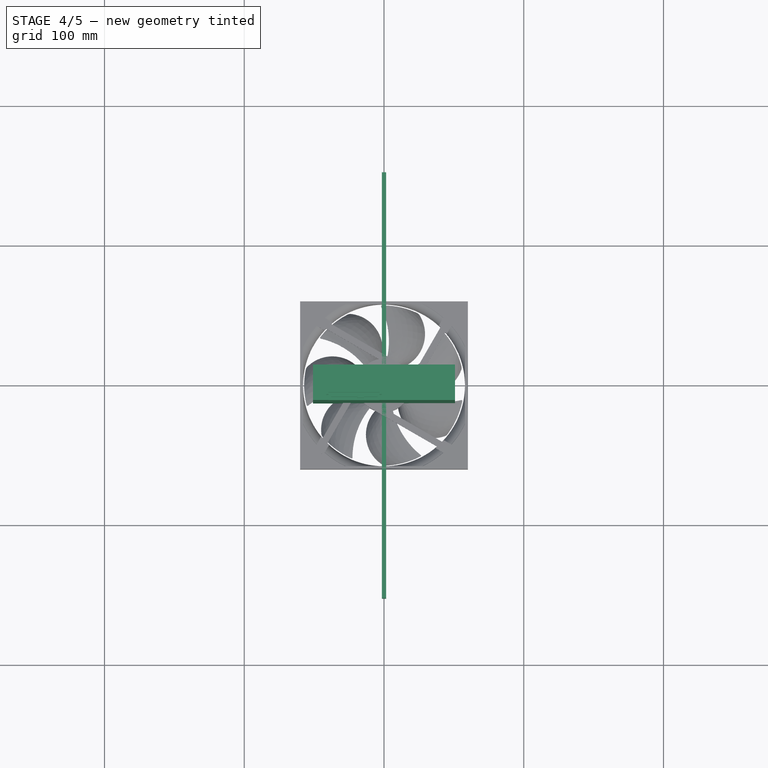
[diagram: stage 4 of 5 — top view after this stage's code; geometry added in this stage tinted green]
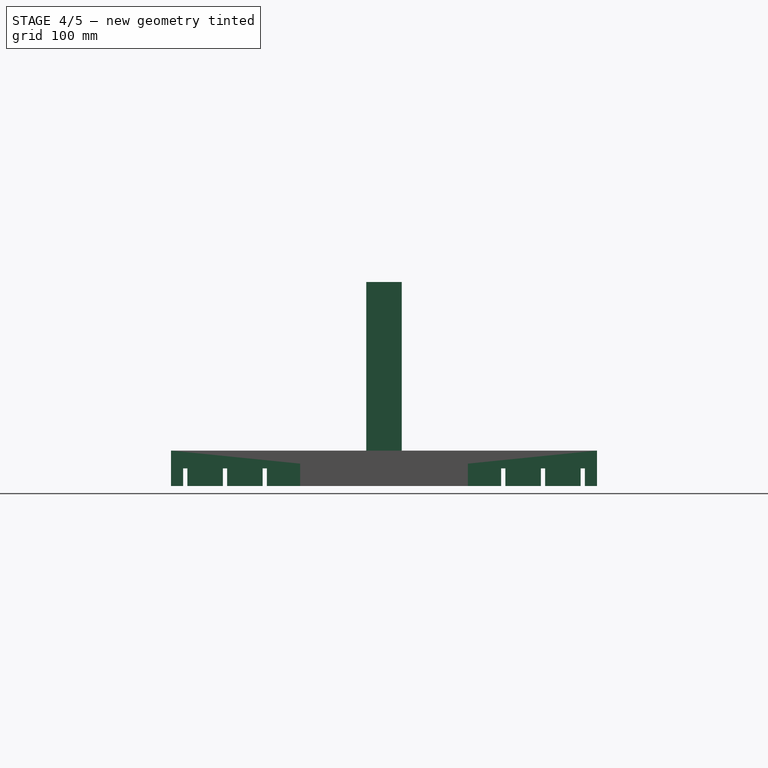
[diagram: stage 4 of 5 — right view after this stage's code; geometry added in this stage tinted green]
FEATURE [Sketcher::SketchObject] Sketch005  label="columnSlatSketch"
  FullyConstrained = true
  MapMode = 5
  Support = -> [XY_Plane005]
  expr: Constraints[10] = Spreadsheet.slatWidth
  expr: Constraints[9] = Spreadsheet.slatLength
  sketch-geometry (4):
    g0: LineSegment StartX=-1.524 StartY=152.4 StartZ=0 EndX=1.524 EndY=152.4 EndZ=0
    g1: LineSegment StartX=1.524 StartY=152.4 StartZ=0 EndX=1.524 EndY=-152.4 EndZ=0
    g2: LineSegment StartX=1.524 StartY=-152.4 StartZ=0 EndX=-1.524 EndY=-152.4 EndZ=0
    g3: LineSegment StartX=-1.524 StartY=-152.4 StartZ=0 EndX=-1.524 EndY=152.4 EndZ=0
  constraints (11):
    c: Coincident(g0,g1)
    c: Coincident(g1,g2)
    c: Coincident(g2,g3)
    c: Coincident(g3,g0)
    c: Horizontal(g0)
    c: Horizontal(g2)
    c: Vertical(g1)
    c: Vertical(g3)
    c: Symmetric(g0,g1,g-1)
    c: DistanceY(g3,g3) = 304.8
    c: DistanceX(g2,g2) = 3.048
FEATURE [PartDesign::Pad] Pad003  label="columnSlatPad"
  Direction = (0,0,1)
  Length = 25.4
  Length2 = 9.906
  Profile = -> Sketch005
  ReferenceAxis = -> Sketch005 [N_Axis]
  Type = 0
  expr: Length = Spreadsheet.slatHeight
FEATURE [Sketcher::SketchObject] Sketch006  label="columnSlatNotchSketch"
  FullyConstrained = true
  MapMode = 5
  Placement = pos=(0,0,0) rot=(0.57735,0.57735,0.57735;2.0944rad)
  Support = -> [YZ_Plane005]
  expr: Constraints[10] = Spreadsheet.slatNotchHeight
  expr: Constraints[8] = Spreadsheet.slatNotchWidth
  expr: Constraints[9] = (Spreadsheet.slatNotchWidth + Spreadsheet.hddHeight) * Spreadsheet.hddCount / 2 + Spreadsheet.slatNotchWidth / 2
  sketch-geometry (4):
    g0: LineSegment StartX=-143.764 StartY=12.7 StartZ=0 EndX=-140.716 EndY=12.7 EndZ=0
    g1: LineSegment StartX=-140.716 StartY=12.7 StartZ=0 EndX=-140.716 EndY=0 EndZ=0
    g2: LineSegment StartX=-140.716 StartY=0 StartZ=0 EndX=-143.764 EndY=0 EndZ=0
    g3: LineSegment StartX=-143.764 StartY=0 StartZ=0 EndX=-143.764 EndY=12.7 EndZ=0
  constraints (12):
    c: Coincident(g0,g1)
    c: Coincident(g1,g2)
    c: Coincident(g2,g3)
    c: Coincident(g3,g0)
    c: Horizontal(g0)
    c: Horizontal(g2)
    c: Vertical(g1)
    c: Vertical(g3)
    c: DistanceX(g0,g0) = 3.048
    c: DistanceX(g2,g-1) = 143.764
    c: DistanceY(g3,g3) = 12.7
    c: PointOnObject(g1,g-1)
FEATURE [PartDesign::Pocket] Pocket002  label="columnSlatNotchPocket"
  BaseFeature = -> Pad003
  Direction = (-1,2e-16,-3e-16)
  Length = 3.048
  Length2 = 5.08
  Midplane = true
  Profile = -> Sketch006
  ReferenceAxis = -> Sketch006 [N_Axis]
  Type = 0
  expr: Length = Spreadsheet.slatWidth
FEATURE [PartDesign::LinearPattern] LinearPattern001  label="columnSlatNotchLinearPattern"
  BaseFeature = -> Pocket002
  Direction = -> Sketch006 [H_Axis]
  Length = 284.48
  Occurrences = 11
  Originals = -> [Pocket002]
  Overlap = 0
  expr: Length = (Spreadsheet.slatNotchWidth + Spreadsheet.hddHeight) * Spreadsheet.hddCount
  expr: Occurrences = Spreadsheet.hddCount + 1
FEATURE [Sketcher::SketchObject] Sketch007  label="hddSketch"
  FullyConstrained = true
  MapMode = 5
  Support = -> [XY_Plane006]
  expr: Constraints[10] = Spreadsheet.hddWidth
  expr: Constraints[9] = Spreadsheet.hddHeight
  sketch-geometry (4):
    g0: LineSegment StartX=-50.8 StartY=12.7 StartZ=0 EndX=50.8 EndY=12.7 EndZ=0
    g1: LineSegment StartX=50.8 StartY=12.7 StartZ=0 EndX=50.8 EndY=-12.7 EndZ=0
    g2: LineSegment StartX=50.8 StartY=-12.7 StartZ=0 EndX=-50.8 EndY=-12.7 EndZ=0
    g3: LineSegment StartX=-50.8 StartY=-12.7 StartZ=0 EndX=-50.8 EndY=12.7 EndZ=0
  constraints (11):
    c: Coincident(g0,g1)
    c: Coincident(g1,g2)
    c: Coincident(g2,g3)
    c: Coincident(g3,g0)
    c: Horizontal(g0)
    c: Horizontal(g2)
    c: Vertical(g1)
    c: Vertical(g3)
    c: Symmetric(g1,g0,g-1)
    c: DistanceY(g3,g3) = 25.4
    c: DistanceX(g0,g0) = 101.6
FEATURE [PartDesign::Pad] Pad004  label="hddPad"
  Direction = (0,0,1)
  Length = 146.05
  Length2 = 9.906
  Profile = -> Sketch007
  ReferenceAxis = -> Sketch007 [N_Axis]
  Type = 0
  expr: Length = Spreadsheet.hddLength
FEATURE [PartDesign::Plane] DatumPlane  label="mirrorDatumPlane"
  AttachmentOffset = pos=(0,0,21.4313) rot=(0,0,1;0rad)
  Length = 68.4959
  MapMode = 5
  Placement = pos=(-21.4312,4.8e-15,-4.8e-15) rot=(-0.57735,0.57735,0.57735;4.18879rad)
  ResizeMode = 0
  Support = -> [YZ_Plane006]
  Width = 189.546
  expr: .AttachmentOffset.Base.x = 0
  expr: .AttachmentOffset.Base.z = Spreadsheet.hddWidth / 2 - 7in / 16 - (1in + 7in / 16) / 2
FEATURE [PartDesign::Plane] DatumPlane001  label="hddEndDatumPlane"
  Length = 115.855
  MapMode = 2
  Placement = pos=(0,0,146.05) rot=(0,0,1;0rad)
  ResizeMode = 0
  Width = 64.2548
  expr: .Placement.Base.z = Spreadsheet.hddLength
FEATURE [Sketcher::SketchObject] Sketch008  label="connectorSketch"
  FullyConstrained = true
  MapMode = 5
  Placement = pos=(0,0,146.05) rot=(0,0,1;0rad)
  Support = -> [DatumPlane001]
  expr: .AttachmentOffset.Base.z = 0
  expr: Constraints[20] = 1in / 16
  expr: Constraints[21] = 1in / 32
  expr: Constraints[22] = 1in / 16
  expr: Constraints[23] = 2in / 16
  expr: Constraints[5] = (1in + 7in / 16) / 2
  expr: Constraints[6] = Spreadsheet.hddWidth / 2 - 7in / 16
  expr: Constraints[7] = Spreadsheet.hddHeight / 2
  sketch-geometry (8):
    g0: LineSegment StartX=-39.6875 StartY=-7.14375 StartZ=0 EndX=-21.4312 EndY=-7.14375 EndZ=0
    g1: LineSegment StartX=-21.4312 StartY=-12.7 StartZ=0 EndX=-39.6875 EndY=-12.7 EndZ=0
    g2: LineSegment StartX=-39.6875 StartY=-12.7 StartZ=0 EndX=-39.6875 EndY=-11.9062 EndZ=0
    g3: LineSegment StartX=-39.6875 StartY=-11.9062 StartZ=0 EndX=-41.275 EndY=-11.9062 EndZ=0
    g4: LineSegment StartX=-41.275 StartY=-8.73125 StartZ=0 EndX=-39.6875 EndY=-8.73125 EndZ=0
    g5: LineSegment StartX=-41.275 StartY=-11.9062 StartZ=0 EndX=-41.275 EndY=-8.73125 EndZ=0
    g6: LineSegment StartX=-39.6875 StartY=-8.73125 StartZ=0 EndX=-39.6875 EndY=-7.14375 EndZ=0
    g7: LineSegment StartX=-21.4312 StartY=-7.14375 StartZ=0 EndX=-21.4312 EndY=-12.7 EndZ=0
  constraints (24):
    c: Coincident(g1,g2)
    c: Coincident(g6,g0)
    c: Horizontal(g0)
    c: Horizontal(g1)
    c: Vertical(g2)
    c: DistanceX(g0,g0) = 18.2562
    c: DistanceX(g0,g-1) = 39.6875
    c: DistanceY(g1,g-1) = 12.7
    c: Horizontal(g4)
    c: Coincident(g5,g3)
    c: Coincident(g5,g4)
    c: Coincident(g2,g3)
    c: Coincident(g6,g4)
    c: Horizontal(g3)
    c: Vertical(g5)
    c: Vertical(g6)
    c: Coincident(g7,g0)
    c: Coincident(g7,g1)
    c: Vertical(g7)
    c: Equal(g0,g1)
    c: DistanceY(g6,g6) = 1.5875
    c: DistanceY(g2,g2) = 0.79375
    c: DistanceX(g3,g3) = 1.5875
    c: DistanceY(g5,g5) = 3.175
FEATURE [PartDesign::Pocket] Pocket003  label="connectorPocket"
  BaseFeature = -> Pad004
  Direction = (0,0,-1)
  Length = 6.35
  Length2 = 5.08
  Profile = -> Sketch008
  ReferenceAxis = -> Sketch008 [N_Axis]
  Type = 0
FEATURE [PartDesign::Mirrored] Mirrored
  BaseFeature = -> Pocket003
  MirrorPlane = -> DatumPlane
  Originals = -> [Pocket003]
  Overlap = 0
  Refine = true
FEATURE [Sketcher::SketchObject] Sketch009  label="connectorTongueSketch"
  FullyConstrained = true
  MapMode = 5
  Placement = pos=(0,0,146.05) rot=(0,0,1;0rad)
  Support = -> [DatumPlane001]
  expr: Constraints[15] = 3in / 4
  expr: Constraints[16] = 3in / 8
  expr: Constraints[19] = 1in / 32
  expr: Constraints[22] = Spreadsheet.hddWidth / 2 - 7in / 16 - (1in + 7in / 16) / 2
  expr: Constraints[24] = Spreadsheet.hddHeight / 2 - (3in / 16 - 1in / 32) / 2 - 1in / 32 / 2
  expr: Constraints[8] = 1in + 5in / 16
  expr: Constraints[9] = 1in / 32
  sketch-geometry (9):
    g0: LineSegment StartX=-38.1 StartY=-10.3188 StartZ=0 EndX=-19.05 EndY=-10.3188 EndZ=0
    g1: LineSegment StartX=-4.7625 StartY=-10.3187 StartZ=0 EndX=-4.7625 EndY=-9.525 EndZ=0
    g2: LineSegment StartX=-4.7625 StartY=-9.525 StartZ=0 EndX=-38.1 EndY=-9.525 EndZ=0
    g3: LineSegment StartX=-38.1 StartY=-9.525 StartZ=0 EndX=-38.1 EndY=-10.3188 EndZ=0
    g4: LineSegment StartX=-19.05 StartY=-10.3188 StartZ=0 EndX=-19.05 EndY=-11.1125 EndZ=0
    g5: LineSegment StartX=-19.05 StartY=-11.1125 StartZ=0 EndX=-14.2875 EndY=-11.1125 EndZ=0
    g6: LineSegment StartX=-14.2875 StartY=-11.1125 StartZ=0 EndX=-14.2875 EndY=-10.3187 EndZ=0
    g7: LineSegment StartX=-14.2875 StartY=-10.3187 StartZ=0 EndX=-4.7625 EndY=-10.3187 EndZ=0
    g8: GeomPoint X=-21.4313 Y=-9.525 Z=0
  constraints (25):
    c: Coincident(g7,g1)
    c: Coincident(g1,g2)
    c: Coincident(g2,g3)
    c: Coincident(g3,g0)
    c: Horizontal(g0)
    c: Horizontal(g2)
    c: Vertical(g1)
    c: Vertical(g3)
    c: DistanceX(g2,g2) = 33.3375
    c: DistanceY(g3,g3) = 0.79375
    c: Coincident(g4,g5)
    c: Horizontal(g5)
    c: Coincident(g5,g6)
    c: Coincident(g0,g4)
    c: Coincident(g7,g6)
    c: DistanceX(g0,g0) = 19.05
    c: DistanceX(g7,g7) = 9.525
    c: Vertical(g6)
    c: Vertical(g4)
    c: DistanceY(g4,g4) = 0.79375
    c: Equal(g4,g6)
    c: Equal(g3,g1)
    c: DistanceX(g8,g-1) = 21.4313
    c: Symmetric(g2,g1,g8)
    c: DistanceY(g1,g-1) = 10.3187
FEATURE [PartDesign::Pad] Pad005  label="connectorTonguePad"
  BaseFeature = -> Mirrored
  Direction = (0,0,1)
  Length = 9.906
  Length2 = 9.906
  Profile = -> Sketch009
  ReferenceAxis = -> Sketch009 [N_Axis]
  Reversed = true
  Type = 0
FEATURE [PartDesign::PolarPattern] PolarPattern
  Angle = 360
  Axis = -> Sketch019 [N_Axis]
  BaseFeature = -> Pad013
  Occurrences = 4
  Originals = -> [Pad011,Pad012]
  Overlap = 0
FEATURE [PartDesign::Pad] Pad015  label="fanMotorMountPad"
  BaseFeature = -> PolarPattern
  Direction = (0,0,-1)
  Length = 3.175
  Length2 = 9.906
  Profile = -> Sketch021
  ReferenceAxis = -> Sketch021 [N_Axis]
  Type = 0
  expr: Length = 1in / 8
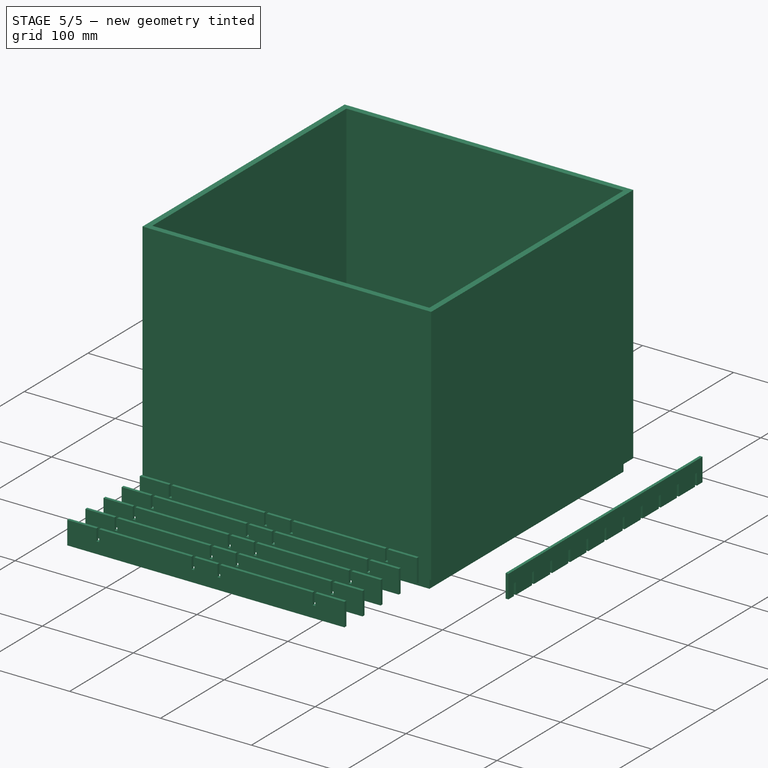
[diagram: stage 5 of 5 — iso view after this stage's code; geometry added in this stage tinted green]
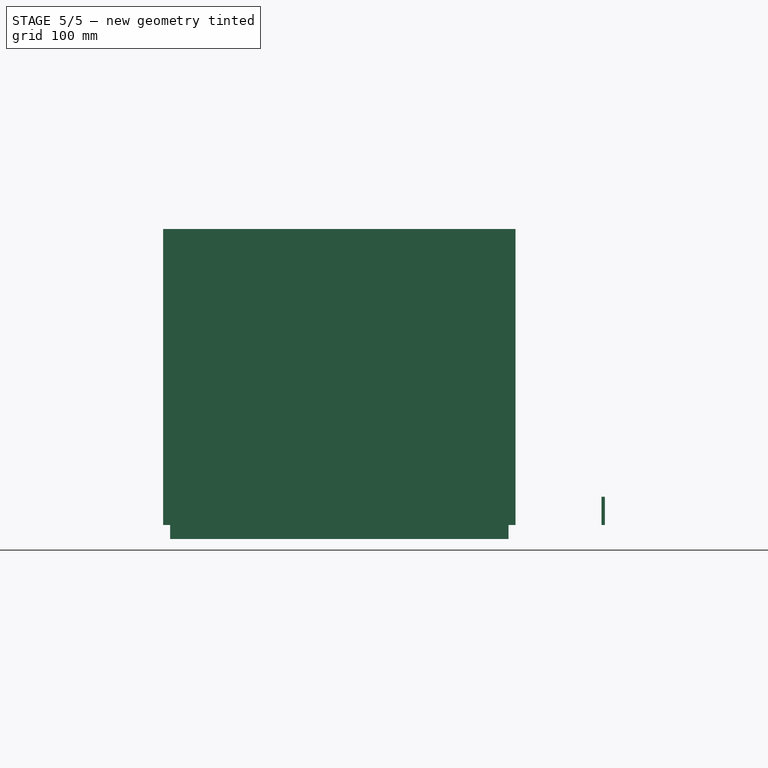
[diagram: stage 5 of 5 — front view after this stage's code; geometry added in this stage tinted green]
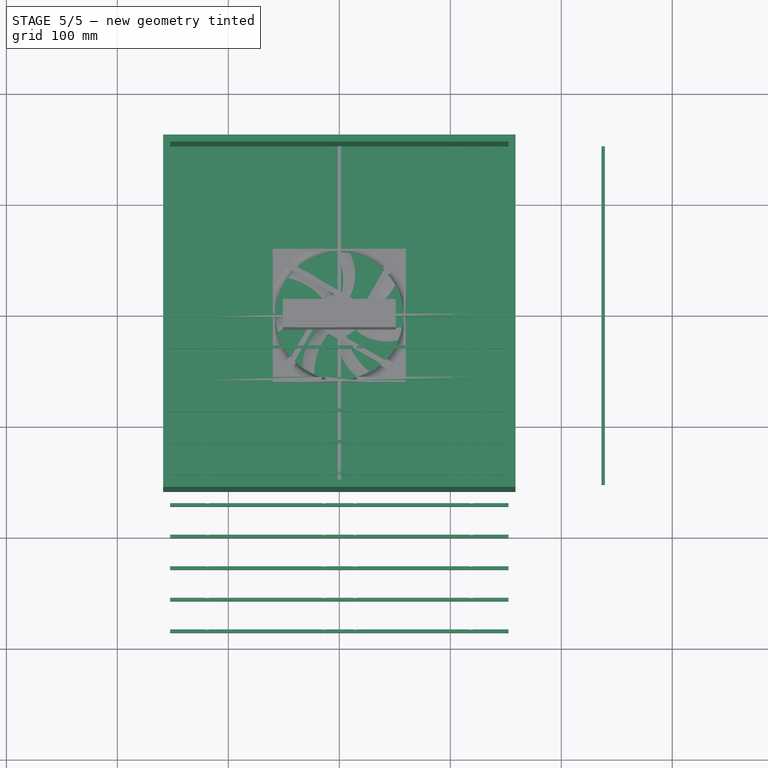
[diagram: stage 5 of 5 — top view after this stage's code; geometry added in this stage tinted green]
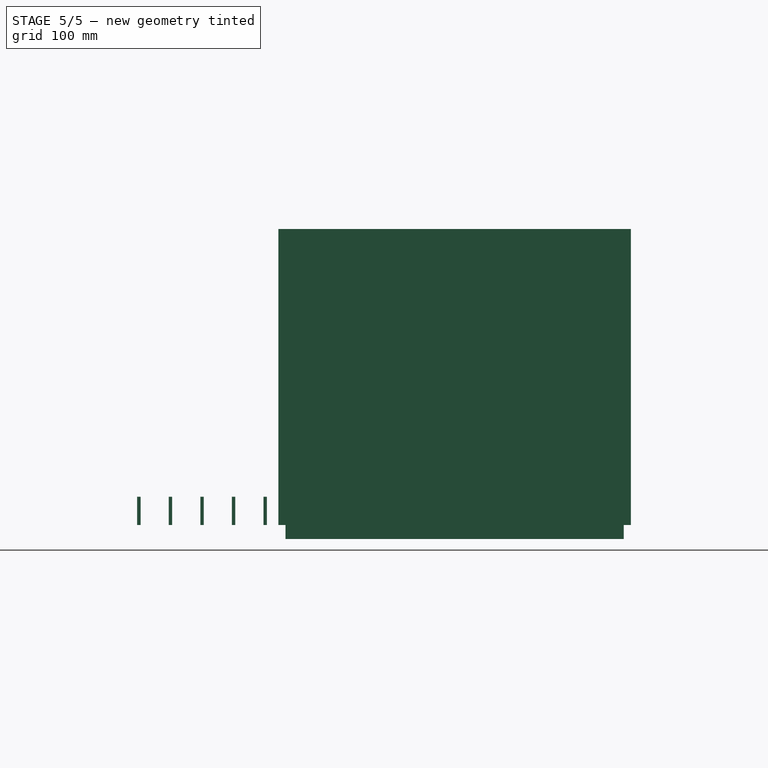
[diagram: stage 5 of 5 — right view after this stage's code; geometry added in this stage tinted green]
FEATURE [Spreadsheet::Sheet] Spreadsheet
  cells = A1=#crate; A2=crateWidth; B2(crateWidth)==12in; A3=crateHeight; B3(crateHeight)==10.5in; A4=crateLength; B4(crateLength)==12in; A5=crateWallWidth; B5(crateWallWidth)==0.5in; A6=#slats; A7=slatLength; B7(slatLength)==crateLength; C7=Ref; A8=slatWidth; B8(slatWidth)==0.12in; A9=slatHeight; B9(slatHeight)==1in; A10=slatNotchWidth; B10(slatNotchWidth)==slatWidth; C10=Ref; A11=slatNotchHeight; B11(slatNotchHeight)==slatHeight / 2; C11=Ref; A12=rowSlatCount; B12(rowSlatCount)==hddCount + 1; C12=Ref; A13=columnSlatCount; B13(columnSlatCount)=2; A14=columnSlatFanSpacing; B14(columnSlatFanSpacing)==1in; A15=rowNotchEndSpacing; B15(rowNotchEndSpacing)==1in; A16=rowNotchHddSpacing; B16(rowNotchHddSpacing)==1in; A17=#hdds; A18=hddLength; B18(hddLength)==5.75in; A19=hddWidth; B19(hddWidth)==4in; A20=hddHeight; B20(hddHeight)==1in; A21=hddCount; B21(hddCount)=10; A22=hddColumns; B22(hddColumns)=2; A23=#fans; A24=fanLength; B24(fanLength)==120mm; A25=fanHeight; B25(fanHeight)==1in; A26=fanWidth; B26(fanWidth)==120mm
FEATURE [Sketcher::SketchObject] Sketch  label="crateBaseID"
  AttachmentOffset = pos=(0,0,12.7) rot=(0,0,1;0rad)
  FullyConstrained = true
  MapMode = 5
  Placement = pos=(0,0,12.7) rot=(0,0,1;0rad)
  Support = -> [XY_Plane]
  expr: .AttachmentOffset.Base.z = Spreadsheet.crateWallWidth
  expr: Constraints[10] = Spreadsheet.crateWidth
  expr: Constraints[9] = Spreadsheet.crateLength
  sketch-geometry (4):
    g0: LineSegment StartX=-152.4 StartY=152.4 StartZ=0 EndX=152.4 EndY=152.4 EndZ=0
    g1: LineSegment StartX=152.4 StartY=152.4 StartZ=0 EndX=152.4 EndY=-152.4 EndZ=0
    g2: LineSegment StartX=152.4 StartY=-152.4 StartZ=0 EndX=-152.4 EndY=-152.4 EndZ=0
    g3: LineSegment StartX=-152.4 StartY=-152.4 StartZ=0 EndX=-152.4 EndY=152.4 EndZ=0
  constraints (11):
    c: Coincident(g0,g1)
    c: Coincident(g1,g2)
    c: Coincident(g2,g3)
    c: Coincident(g3,g0)
    c: Horizontal(g0)
    c: Horizontal(g2)
    c: Vertical(g1)
    c: Vertical(g3)
    c: Symmetric(g2,g0,g-1)
    c: DistanceX(g0,g0) = 304.8
    c: DistanceY(g1,g1) = 304.8
FEATURE [Sketcher::SketchObject] Sketch001  label="crateBaseOD"
  FullyConstrained = true
  MapMode = 5
  Support = -> [XY_Plane]
  expr: Constraints[10] = Spreadsheet.crateWidth + Spreadsheet.crateWallWidth
  expr: Constraints[9] = Spreadsheet.crateLength + Spreadsheet.crateWallWidth
  sketch-geometry (4):
    g0: LineSegment StartX=-158.75 StartY=158.75 StartZ=0 EndX=158.75 EndY=158.75 EndZ=0
    g1: LineSegment StartX=158.75 StartY=158.75 StartZ=0 EndX=158.75 EndY=-158.75 EndZ=0
    g2: LineSegment StartX=158.75 StartY=-158.75 StartZ=0 EndX=-158.75 EndY=-158.75 EndZ=0
    g3: LineSegment StartX=-158.75 StartY=-158.75 StartZ=0 EndX=-158.75 EndY=158.75 EndZ=0
  constraints (11):
    c: Coincident(g0,g1)
    c: Coincident(g1,g2)
    c: Coincident(g2,g3)
    c: Coincident(g3,g0)
    c: Horizontal(g0)
    c: Horizontal(g2)
    c: Vertical(g1)
    c: Vertical(g3)
    c: Symmetric(g2,g0,g-1)
    c: DistanceX(g0,g0) = 317.5
    c: DistanceY(g1,g1) = 317.5
FEATURE [PartDesign::Pad] Pad001  label="crateODPad"
  Direction = (0,0,1)
  Length = 266.7
  Length2 = 100
  Profile = -> Sketch001
  Type = 0
  expr: Length = Spreadsheet.crateHeight
FEATURE [PartDesign::Pocket] Pocket  label="crateIDPocket"
  BaseFeature = -> Pad001
  Direction = (0,0,-1)
  Length = 266.7
  Length2 = 100
  Profile = -> Sketch
  Reversed = true
  Type = 1
  expr: Length = Spreadsheet.crateHeight
FEATURE [Sketcher::SketchObject] Sketch002  label="crateBottom"
  FullyConstrained = true
  MapMode = 5
  Support = -> [XY_Plane]
  expr: Constraints[10] = Spreadsheet.crateWidth
  expr: Constraints[9] = Spreadsheet.crateLength
  sketch-geometry (4):
    g0: LineSegment StartX=-152.4 StartY=152.4 StartZ=0 EndX=152.4 EndY=152.4 EndZ=0
    g1: LineSegment StartX=152.4 StartY=152.4 StartZ=0 EndX=152.4 EndY=-152.4 EndZ=0
    g2: LineSegment StartX=152.4 StartY=-152.4 StartZ=0 EndX=-152.4 EndY=-152.4 EndZ=0
    g3: LineSegment StartX=-152.4 StartY=-152.4 StartZ=0 EndX=-152.4 EndY=152.4 EndZ=0
  constraints (11):
    c: Coincident(g0,g1)
    c: Coincident(g1,g2)
    c: Coincident(g2,g3)
    c: Coincident(g3,g0)
    c: Horizontal(g0)
    c: Horizontal(g2)
    c: Vertical(g1)
    c: Vertical(g3)
    c: Symmetric(g2,g0,g-1)
    c: DistanceX(g0,g0) = 304.8
    c: DistanceY(g1,g1) = 304.8
FEATURE [PartDesign::Pad] Pad  label="crateBottomPad"
  BaseFeature = -> Pocket
  Direction = (0,0,1)
  Length = 12.7
  Length2 = 100
  Profile = -> Sketch002
  Reversed = true
  Type = 0
  expr: Length = Spreadsheet.crateWallWidth
FEATURE [PartDesign::Body] Body  label="crateBody"
  Group = -> [Sketch,Sketch001,Pad001,Pocket,Sketch002,Pad]
  Origin = -> Origin
  Tip = -> Pad
FEATURE [Sketcher::SketchObject] Sketch003  label="rowSlatSketch"
  FullyConstrained = true
  MapMode = 5
  Support = -> [XY_Plane001]
  expr: Constraints[10] = Spreadsheet.slatWidth
  expr: Constraints[9] = Spreadsheet.slatLength
  sketch-geometry (4):
    g0: LineSegment StartX=-1.524 StartY=152.4 StartZ=0 EndX=1.524 EndY=152.4 EndZ=0
    g1: LineSegment StartX=1.524 StartY=152.4 StartZ=0 EndX=1.524 EndY=-152.4 EndZ=0
    g2: LineSegment StartX=1.524 StartY=-152.4 StartZ=0 EndX=-1.524 EndY=-152.4 EndZ=0
    g3: LineSegment StartX=-1.524 StartY=-152.4 StartZ=0 EndX=-1.524 EndY=152.4 EndZ=0
  constraints (11):
    c: Coincident(g0,g1)
    c: Coincident(g1,g2)
    c: Coincident(g2,g3)
    c: Coincident(g3,g0)
    c: Horizontal(g0)
    c: Horizontal(g2)
    c: Vertical(g1)
    c: Vertical(g3)
    c: Symmetric(g2,g0,g-1)
    c: DistanceY(g3,g3) = 304.8
    c: DistanceX(g0,g0) = 3.048
FEATURE [PartDesign::Pad] Pad002  label="rowSlatPad"
  Direction = (0,0,1)
  Length = 25.4
  Length2 = 100
  Profile = -> Sketch003
  Type = 0
  expr: Length = Spreadsheet.slatHeight
FEATURE [Sketcher::SketchObject] Sketch004  label="rowSlatNotchSketch"
  FullyConstrained = true
  MapMode = 5
  Placement = pos=(0,0,0) rot=(0.57735,0.57735,0.57735;2.0944rad)
  Support = -> [YZ_Plane001]
  expr: Constraints[10] = Spreadsheet.slatHeight / 2
  expr: Constraints[19] = Spreadsheet.slatHeight / 2
  expr: Constraints[20] = Spreadsheet.slatHeight / 2
  expr: Constraints[21] = Spreadsheet.slatWidth
  expr: Constraints[22] = Spreadsheet.hddWidth
  expr: Constraints[23] = (Spreadsheet.slatNotchWidth * 2 + Spreadsheet.hddWidth + Spreadsheet.columnSlatFanSpacing / Spreadsheet.hddColumns) * Spreadsheet.hddColumns / 2
  expr: Constraints[8] = Spreadsheet.slatHeight / 2
  expr: Constraints[9] = Spreadsheet.slatWidth
  sketch-geometry (8):
    g0: LineSegment StartX=-120.396 StartY=25.4 StartZ=0 EndX=-117.348 EndY=25.4 EndZ=0
    g1: LineSegment StartX=-117.348 StartY=25.4 StartZ=0 EndX=-117.348 EndY=12.7 EndZ=0
    g2: LineSegment StartX=-117.348 StartY=12.7 StartZ=0 EndX=-120.396 EndY=12.7 EndZ=0
    g3: LineSegment StartX=-120.396 StartY=12.7 StartZ=0 EndX=-120.396 EndY=25.4 EndZ=0
    g4: LineSegment StartX=-15.748 StartY=12.7 StartZ=0 EndX=-12.7 EndY=12.7 EndZ=0
    g5: LineSegment StartX=-12.7 StartY=12.7 StartZ=0 EndX=-12.7 EndY=25.4 EndZ=0
    g6: LineSegment StartX=-12.7 StartY=25.4 StartZ=0 EndX=-15.748 EndY=25.4 EndZ=0
    g7: LineSegment StartX=-15.748 StartY=25.4 StartZ=0 EndX=-15.748 EndY=12.7 EndZ=0
  constraints (24):
    c: Coincident(g0,g1)
    c: Coincident(g1,g2)
    c: Coincident(g2,g3)
    c: Coincident(g3,g0)
    c: Horizontal(g0)
    c: Horizontal(g2)
    c: Vertical(g1)
    c: Vertical(g3)
    c: DistanceY(g3,g3) = 12.7
    c: DistanceX(g0,g0) = 3.048
    c: DistanceY(g-1,g1) = 12.7
    c: Coincident(g4,g5)
    c: Coincident(g5,g6)
    c: Coincident(g6,g7)
    c: Coincident(g7,g4)
    c: Horizontal(g4)
    c: Horizontal(g6)
    c: Vertical(g5)
    c: Vertical(g7)
    c: DistanceY(g7,g7) = 12.7
    c: DistanceY(g-1,g4) = 12.7
    c: DistanceX(g6,g6) = 3.048
    c: DistanceX(g0,g6) = 101.6
    c: DistanceX(g0,g-1) = 120.396
FEATURE [PartDesign::Pocket] Pocket001  label="rowSlatNotchPocket"
  BaseFeature = -> Pad002
  Direction = (-1,2e-16,-3e-16)
  Length = 3.048
  Length2 = 100.076
  Midplane = true
  Profile = -> Sketch004
  Type = 0
  expr: Length = Spreadsheet.slatWidth
FEATURE [PartDesign::LinearPattern] LinearPattern  label="rowSlatNotchLinearPattern"
  BaseFeature = -> Pocket001
  Direction = -> Sketch004 [H_Axis]
  Length = 133.096
  Occurrences = 2
  Originals = -> [Pocket001]
  Overlap = 0
  expr: Length = (Spreadsheet.slatNotchWidth * 2 + Spreadsheet.hddWidth + Spreadsheet.columnSlatFanSpacing) * Spreadsheet.hddColumns / Spreadsheet.hddColumns
  expr: Occurrences = Spreadsheet.hddColumns
FEATURE [PartDesign::Body] Body001  label="rowSlatBody"
  Group = -> [Sketch003,Pad002,Sketch004,Pocket001,LinearPattern]
  Origin = -> Origin001
  Tip = -> LinearPattern
FEATURE [Part::FeaturePython] Array003  label="rowSlatArray"  # Draft array (typed FeaturePython)
  AlwaysSyncPlacement = false
  Angle = 360
  ArrayType = 0
  Axis = (0,0,1)
  Base = -> Body001
  Center = (0,0,0)
  Count = 11
  ExpandArray = false
  Fuse = false
  IntervalAxis = (0,0,0)
  IntervalX = (28.448,0,0)
  IntervalY = (0,100.076,0)
  IntervalZ = (0,0,100.076)
  NumberCircles = 3
  NumberPolar = 5
  NumberX = 11
  NumberY = 1
  NumberZ = 1
  Placement = pos=(0,0,0) rot=(0,0,-1;1.5708rad)
  PlacementList = 11 placements: arithmetic series from (0,0,0) step (28.448,0,0) to (284.48,0,0)
  RadialDistance = 50
  ScaleList = (11) [(1,1,1),(1,1,1),(1,1,1),(1,1,1),(1,1,1),(1,1,1),(1,1,1),(1,1,1),(1,1,1),(1,1,1),(1,1,1)]
  Symmetry = 1
  TangentialDistance = 25
  expr: .IntervalX.x = Spreadsheet.slatWidth + Spreadsheet.hddHeight
  expr: NumberX = Spreadsheet.hddCount + 1
FEATURE [PartDesign::Body] Body002  label="columnSlatBody"
  Group = -> [Sketch005,Pad003,Sketch006,Pocket002,LinearPattern001]
  Origin = -> Origin005
  Tip = -> LinearPattern001
FEATURE [Part::FeaturePython] Array004  label="columnSlatSegmentArray"  # Draft array (typed FeaturePython)
  AlwaysSyncPlacement = false
  Angle = 360
  ArrayType = 0
  Axis = (0,0,1)
  Base = -> Body002
  Center = (0,0,0)
  Count = 2
  ExpandArray = false
  Fuse = false
  IntervalAxis = (0,0,0)
  IntervalX = (104.648,0,0)
  IntervalY = (0,100.076,0)
  IntervalZ = (0,0,100.076)
  NumberCircles = 3
  NumberPolar = 5
  NumberX = 2
  NumberY = 1
  NumberZ = 1
  PlacementList = 2 placements: [(0,0,0),(104.648,0,0)]
  RadialDistance = 50
  ScaleList = (2) [(1,1,1),(1,1,1)]
  Symmetry = 1
  TangentialDistance = 25
  expr: .IntervalX.x = Spreadsheet.slatWidth + Spreadsheet.hddWidth
FEATURE [Part::FeaturePython] Array  label="columnSlatArray"  # Draft array (typed FeaturePython)
  AlwaysSyncPlacement = false
  Angle = 360
  ArrayType = 0
  Axis = (0,0,1)
  Base = -> Array004
  Center = (0,0,0)
  Count = 2
  ExpandArray = false
  Fuse = false
  IntervalAxis = (0,0,0)
  IntervalX = (133.096,0,0)
  IntervalY = (0,100.076,0)
  IntervalZ = (0,0,100.076)
  NumberCircles = 3
  NumberPolar = 5
  NumberX = 2
  NumberY = 1
  NumberZ = 1
  PlacementList = 2 placements: [(0,0,0),(133.096,0,0)]
  RadialDistance = 50
  ScaleList = (2) [(1,1,1),(1,1,1)]
  Symmetry = 1
  TangentialDistance = 25
  expr: .IntervalX.x = Spreadsheet.slatWidth * 2 + Spreadsheet.hddWidth + Spreadsheet.columnSlatFanSpacing
  expr: NumberX = Spreadsheet.hddColumns
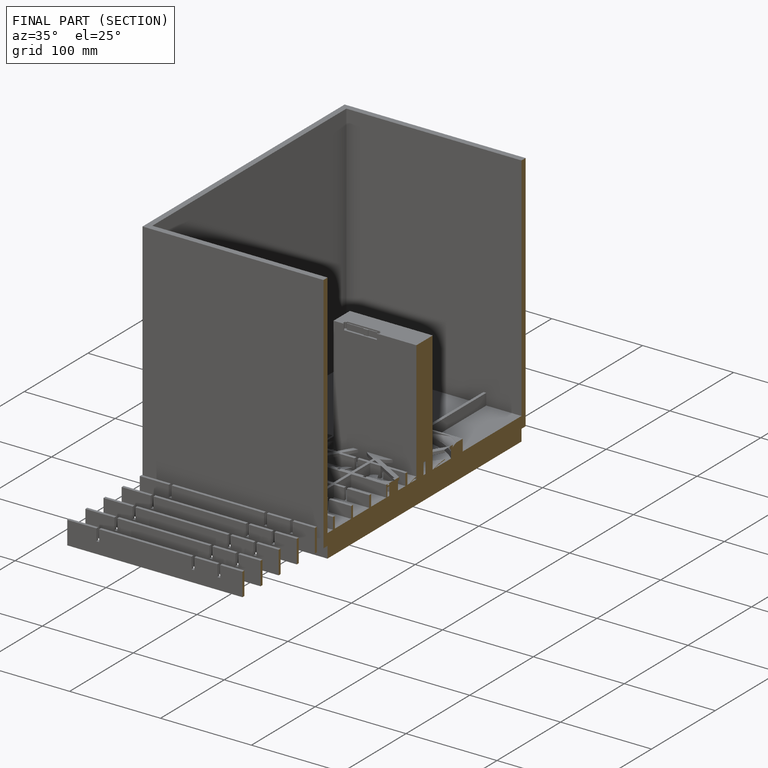
[diagram: finished part — half-section view (interior)]
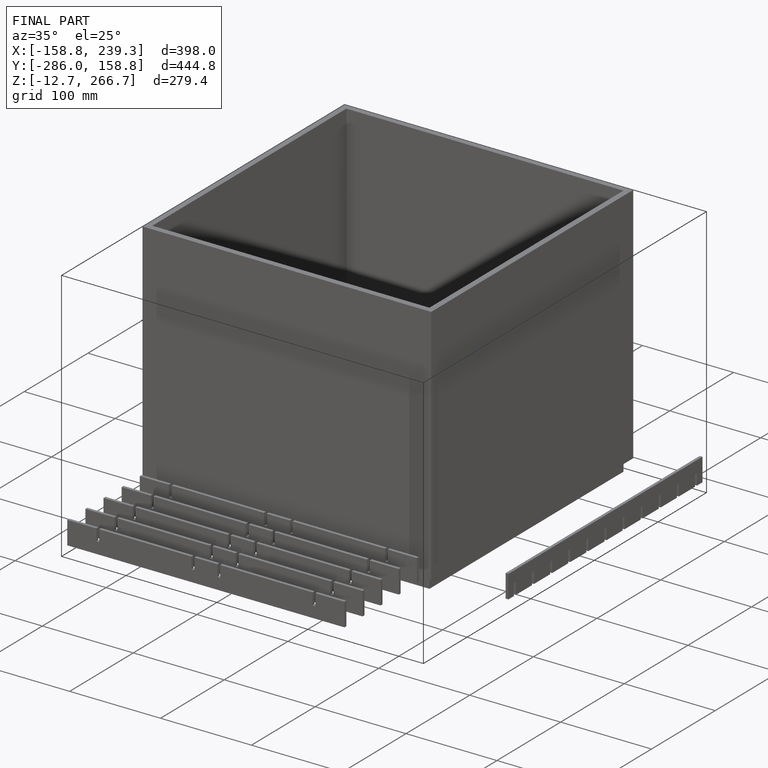
[diagram: finished part — iso view with bounding-box wireframe]
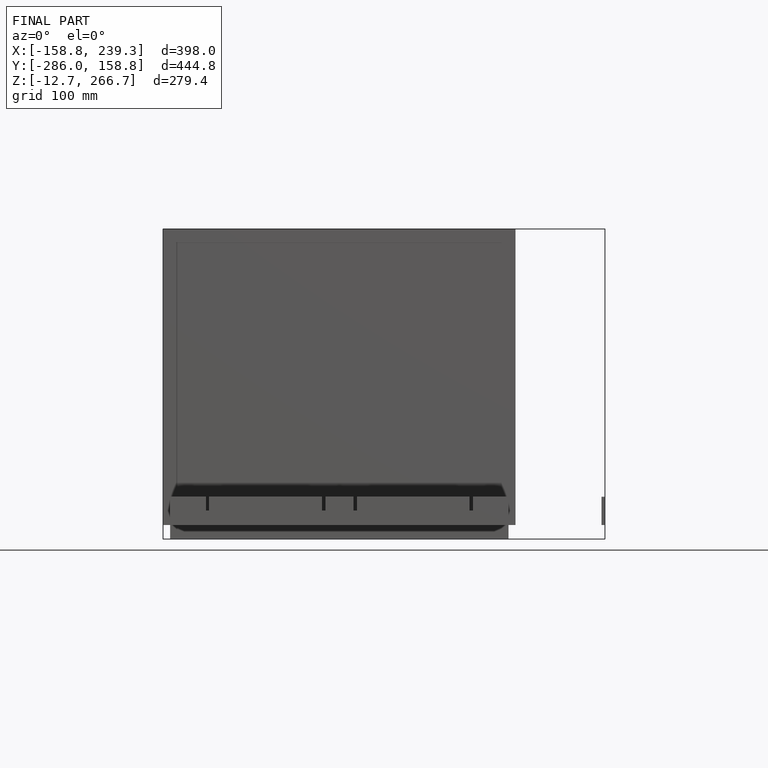
[diagram: finished part — front view with bounding-box wireframe]
